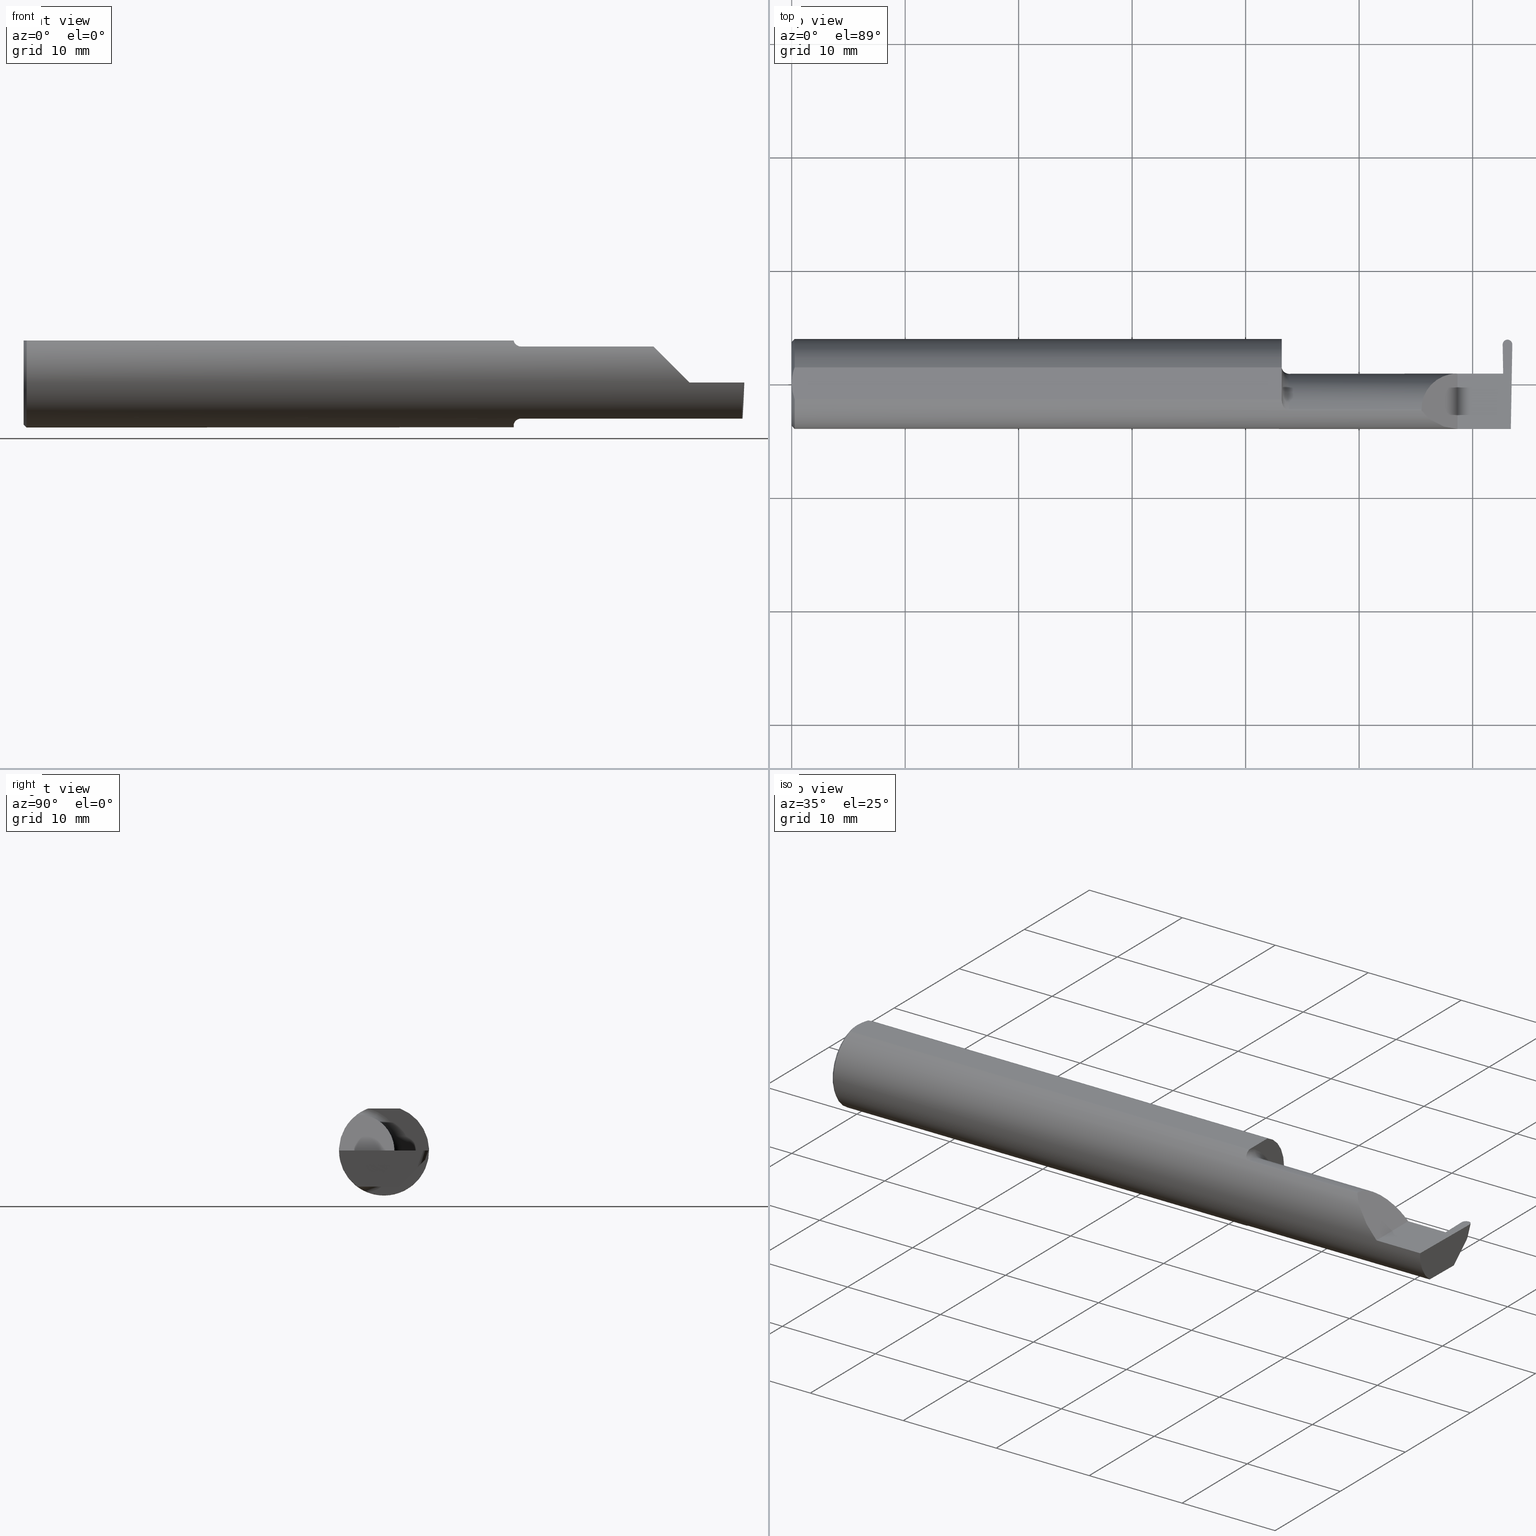
[diagram: canonical four-view strip — front | top / right | iso, engineering-drawing reading convention]
A machine part, canonical four-view strip (front | top / right | iso — engineering-drawing reading convention). The complete STEP part file that produces these views, byte-faithful:
ISO-10303-21;
HEADER;
FILE_DESCRIPTION (( 'STEP AP203' ),
    '1' );
FILE_NAME ('222017-GFR033-12.STEP',
    '2024-06-17T21:41:22',
    ( '' ),
    ( '' ),
    'SwSTEP 2.0',
    'SolidWorks 2022',
    '' );
FILE_SCHEMA (( 'CONFIG_CONTROL_DESIGN' ));
ENDSEC;

DATA;
#1 = CARTESIAN_POINT ( 'NONE',  ( 0.0009113193687667381273, -0.01867274705588958111, 0.1460999999999998411 ) ) ;
#2 = EDGE_CURVE ( 'NONE', #299, #800, #129, .T. ) ;
#3 = DIRECTION ( 'NONE',  ( -0.03867711768362980251, 0.3253245514560481610, 0.9448111011136605120 ) ) ;
#4 = VERTEX_POINT ( 'NONE', #445 ) ;
#5 = DIRECTION ( 'NONE',  ( 0.000000000000000000, 0.000000000000000000, 1.000000000000000000 ) ) ;
#6 = CARTESIAN_POINT ( 'NONE',  ( 2.310000000000000053, -0.1560999999999999888, 2.326828918379970872E-17 ) ) ;
#7 = CARTESIAN_POINT ( 'NONE',  ( 2.464059707644674191, 0.2077620204123533376, 0.03353617642433374263 ) ) ;
#8 =( CONVERSION_BASED_UNIT ( 'INCH', #318 ) LENGTH_UNIT ( ) NAMED_UNIT ( #44 ) );
#9 = AXIS2_PLACEMENT_3D ( 'NONE', #59, #547, #794 ) ;
#10 = DIRECTION ( 'NONE',  ( 0.000000000000000000, 0.000000000000000000, -1.000000000000000000 ) ) ;
#11 = LINE ( 'NONE', #755, #386 ) ;
#12 = CC_DESIGN_PERSON_AND_ORGANIZATION_ASSIGNMENT ( #472, #528, ( #289 ) ) ;
#13 = CARTESIAN_POINT ( 'NONE',  ( 2.494884149684813757, -0.1560999999999999888, 0.000000000000000000 ) ) ;
#14 = ADVANCED_FACE ( 'NONE', ( #134 ), #154, .F. ) ;
#15 = CARTESIAN_POINT ( 'NONE',  ( 2.460866666469919473, 0.03559550628247790810, -0.008719559218017721922 ) ) ;
#16 = CARTESIAN_POINT ( 'NONE',  ( 1.699999999999999956, -0.08909999999999999865, -0.1250000000000000278 ) ) ;
#17 = ORIENTED_EDGE ( 'NONE', *, *, #148, .T. ) ;
#18 = LINE ( 'NONE', #22, #453 ) ;
#19 = ORIENTED_EDGE ( 'NONE', *, *, #426, .F. ) ;
#20 = CIRCLE ( 'NONE', #126, 0.1560999999999999888 ) ;
#21 = ORIENTED_EDGE ( 'NONE', *, *, #50, .F. ) ;
#22 = CARTESIAN_POINT ( 'NONE',  ( 2.472822662481140910, -0.08936878799867206680, -0.1250000000000000278 ) ) ;
#23 = EDGE_CURVE ( 'NONE', #552, #4, #635, .T. ) ;
#24 = CARTESIAN_POINT ( 'NONE',  ( 2.472736521078112926, -0.01986741890188671936, -0.1250000000000000555 ) ) ;
#25 = ORIENTED_EDGE ( 'NONE', *, *, #488, .F. ) ;
#26 = CARTESIAN_POINT ( 'NONE',  ( 1.724999999999999867, -0.08910000000000001252, 0.1250000000000000278 ) ) ;
#27 = DESIGN_CONTEXT ( 'detailed design', #371, 'design' ) ;
#28 = DIRECTION ( 'NONE',  ( -0.03867711768363006619, -0.3253245514560481610, -0.9448111011136605120 ) ) ;
#29 = ORIENTED_EDGE ( 'NONE', *, *, #182, .T. ) ;
#30 = APPROVAL_DATE_TIME ( #89, #723 ) ;
#31 = DIRECTION ( 'NONE',  ( 0.000000000000000000, 0.000000000000000000, -1.000000000000000000 ) ) ;
#32 = LINE ( 'NONE', #281, #768 ) ;
#33 = ORIENTED_EDGE ( 'NONE', *, *, #359, .F. ) ;
#34 = CIRCLE ( 'NONE', #627, 0.02499999999999993894 ) ;
#35 = CARTESIAN_POINT ( 'NONE',  ( 2.468075038322403714, 0.1311060022846998185, -0.04311984170332067851 ) ) ;
#36 = LINE ( 'NONE', #729, #221 ) ;
#37 = ORIENTED_EDGE ( 'NONE', *, *, #311, .F. ) ;
#38 = CARTESIAN_POINT ( 'NONE',  ( 2.259912409421231949, -0.1560999999999999333, 0.05008759057876778498 ) ) ;
#39 = DIRECTION ( 'NONE',  ( 0.000000000000000000, 0.000000000000000000, 1.000000000000000000 ) ) ;
#40 = ORIENTED_EDGE ( 'NONE', *, *, #329, .T. ) ;
#41 = CARTESIAN_POINT ( 'NONE',  ( 1.699999999999999956, -0.05497272050753934658, 0.1460999999999998689 ) ) ;
#42 = EDGE_CURVE ( 'NONE', #507, #628, #354, .T. ) ;
#43 = DIRECTION ( 'NONE',  ( -1.000000000000000000, -0.000000000000000000, -0.000000000000000000 ) ) ;
#44 = DIMENSIONAL_EXPONENTS ( 1.000000000000000000, 0.000000000000000000, 0.000000000000000000, 0.000000000000000000, 0.000000000000000000, 0.000000000000000000, 0.000000000000000000 ) ;
#45 =( BOUNDED_CURVE ( )  B_SPLINE_CURVE ( 3, ( #522, #535, #713, #654 ),
 .UNSPECIFIED., .F., .F. ) 
 B_SPLINE_CURVE_WITH_KNOTS ( ( 4, 4 ),
 ( 0.4273896528388629878, 0.4634648172053268400 ),
 .UNSPECIFIED. ) 
 CURVE ( )  GEOMETRIC_REPRESENTATION_ITEM ( )  RATIONAL_B_SPLINE_CURVE ( ( 1.000000000000000000, 0.9998915514833921492, 0.9998915514833921492, 1.000000000000000000 ) ) 
 REPRESENTATION_ITEM ( '' )  );
#46 = ORIENTED_EDGE ( 'NONE', *, *, #378, .T. ) ;
#47 = VECTOR ( 'NONE', #236, 39.37007874015748854 ) ;
#48 = AXIS2_PLACEMENT_3D ( 'NONE', #604, #49, #251 ) ;
#49 = DIRECTION ( 'NONE',  ( 0.000000000000000000, -0.9455185755993165131, 0.3255681544571574215 ) ) ;
#50 = EDGE_CURVE ( 'NONE', #381, #419, #693, .T. ) ;
#51 = CARTESIAN_POINT ( 'NONE',  ( 1.703804698179399946, -0.07664326672408305896, -0.1360300949145557270 ) ) ;
#52 = B_SPLINE_CURVE_WITH_KNOTS ( 'NONE', 3,
 ( #698, #749, #188, #1, #702, #746 ),
 .UNSPECIFIED., .F., .F.,
 ( 4, 2, 4 ),
 ( 0.001497827971916944247, 0.002206109860466205601, 0.002914391749015466521 ),
 .UNSPECIFIED. ) ;
#53 = ORIENTED_EDGE ( 'NONE', *, *, #62, .F. ) ;
#54 = CARTESIAN_POINT ( 'NONE',  ( 2.215117332916549220, -0.1336908980339253650, 0.09488266708345012568 ) ) ;
#55 = PRODUCT_RELATED_PRODUCT_CATEGORY ( 'detail', '', ( #664 ) ) ;
#56 = DIRECTION ( 'NONE',  ( -1.000000000000000000, -0.000000000000000000, -0.000000000000000000 ) ) ;
#57 = ORIENTED_EDGE ( 'NONE', *, *, #23, .F. ) ;
#58 = EDGE_CURVE ( 'NONE', #686, #552, #266, .T. ) ;
#59 = CARTESIAN_POINT ( 'NONE',  ( 2.310000000000000053, -0.2500000000000000555, 2.326828918379970872E-17 ) ) ;
#60 = LINE ( 'NONE', #685, #47 ) ;
#61 = ORIENTED_EDGE ( 'NONE', *, *, #766, .T. ) ;
#62 = EDGE_CURVE ( 'NONE', #278, #683, #781, .T. ) ;
#63 = CARTESIAN_POINT ( 'NONE',  ( 1.699999999999999956, 0.000000000000000000, 0.000000000000000000 ) ) ;
#64 = ORIENTED_EDGE ( 'NONE', *, *, #549, .T. ) ;
#65 = DIRECTION ( 'NONE',  ( -1.000000000000000000, -0.000000000000000000, -0.000000000000000000 ) ) ;
#66 = ORIENTED_EDGE ( 'NONE', *, *, #355, .F. ) ;
#67 = COORDINATED_UNIVERSAL_TIME_OFFSET ( 8, 0, .BEHIND. ) ;
#68 = PLANE ( 'NONE',  #262 ) ;
#69 = CARTESIAN_POINT ( 'NONE',  ( 1.724999999999999867, -0.08910000000000001252, 0.000000000000000000 ) ) ;
#70 =( BOUNDED_CURVE ( )  B_SPLINE_CURVE ( 3, ( #286, #35, #160, #411 ),
 .UNSPECIFIED., .F., .T. ) 
 B_SPLINE_CURVE_WITH_KNOTS ( ( 4, 4 ),
 ( 4.726121454046342762, 6.236040282224284859 ),
 .UNSPECIFIED. ) 
 CURVE ( )  GEOMETRIC_REPRESENTATION_ITEM ( )  RATIONAL_B_SPLINE_CURVE ( ( 1.000000000000000000, 0.8188662370985364536, 0.8188662370985364536, 1.000000000000000000 ) ) 
 REPRESENTATION_ITEM ( '' )  );
#71 = PERSON_AND_ORGANIZATION_ROLE ( 'design_owner' ) ;
#72 = APPROVAL ( #569, 'UNSPECIFIED' ) ;
#73 = VECTOR ( 'NONE', #688, 39.37007874015748143 ) ;
#74 = PLANE ( 'NONE',  #731 ) ;
#75 = AXIS2_PLACEMENT_3D ( 'NONE', #128, #194, #79 ) ;
#76 = CARTESIAN_POINT ( 'NONE',  ( 2.493134786043259332, -0.1561000000000000165, -0.05008759057876779885 ) ) ;
#77 = EDGE_CURVE ( 'NONE', #515, #599, #774, .T. ) ;
#78 = PLANE ( 'NONE',  #771 ) ;
#79 = DIRECTION ( 'NONE',  ( 1.000000000000000000, 0.000000000000000000, -0.000000000000000000 ) ) ;
#80 = ORIENTED_EDGE ( 'NONE', *, *, #131, .T. ) ;
#81 = CALENDAR_DATE ( 2024, 17, 6 ) ;
#82 = DIRECTION ( 'NONE',  ( 1.000000000000000000, 0.000000000000000000, 0.000000000000000000 ) ) ;
#83 = ORIENTED_EDGE ( 'NONE', *, *, #284, .T. ) ;
#84 = ADVANCED_FACE ( 'NONE', ( #523 ), #478, .T. ) ;
#85 = CARTESIAN_POINT ( 'NONE',  ( 0.000000000000000000, 0.000000000000000000, 0.000000000000000000 ) ) ;
#86 = AXIS2_PLACEMENT_3D ( 'NONE', #69, #447, #321 ) ;
#87 = CARTESIAN_POINT ( 'NONE',  ( 1.712810002172886481, -0.08909999999996051634, -0.1281733201567833713 ) ) ;
#88 = ORIENTED_EDGE ( 'NONE', *, *, #622, .F. ) ;
#89 = DATE_AND_TIME ( #344, #169 ) ;
#90 = CARTESIAN_POINT ( 'NONE',  ( 1.724999999999999867, -0.09360841750841744635, -0.1249186702281520484 ) ) ;
#91 = CARTESIAN_POINT ( 'NONE',  ( 2.498391341677597133, 0.1311060022846997908, -0.04311984170332067851 ) ) ;
#92 = ORIENTED_EDGE ( 'NONE', *, *, #329, .F. ) ;
#93 = APPROVAL_ROLE ( '' ) ;
#94 = DIRECTION ( 'NONE',  ( 0.000000000000000000, 0.000000000000000000, -1.000000000000000000 ) ) ;
#95 = UNCERTAINTY_MEASURE_WITH_UNIT (LENGTH_MEASURE( 1.000000000000000082E-05 ), #8, 'distance_accuracy_value', 'NONE');
#96 = DIRECTION ( 'NONE',  ( 0.000000000000000000, 0.000000000000000000, -1.000000000000000000 ) ) ;
#97 = ORIENTED_EDGE ( 'NONE', *, *, #549, .F. ) ;
#98 = CARTESIAN_POINT ( 'NONE',  ( 1.699999999999999956, 0.05497272050753933964, 0.1460999999999998689 ) ) ;
#99 = DIRECTION ( 'NONE',  ( -0.000000000000000000, 1.000000000000000000, -0.000000000000000000 ) ) ;
#100 = CLOSED_SHELL ( 'NONE', ( #215, #633, #653, #241, #801, #276, #450, #725, #460, #751, #197, #598, #14, #718, #195, #365, #679, #464, #250, #761, #259, #84, #438 ) ) ;
#101 = EDGE_CURVE ( 'NONE', #674, #645, #789, .T. ) ;
#102 = ORIENTED_EDGE ( 'NONE', *, *, #226, .F. ) ;
#103 = VECTOR ( 'NONE', #543, 39.37007874015748143 ) ;
#104 = LOCAL_TIME ( 14, 41, 22.00000000000000000, #465 ) ;
#105 = CARTESIAN_POINT ( 'NONE',  ( 1.712810002172222568, -0.08909999999984938301, 0.1281733201569305869 ) ) ;
#106 = DIRECTION ( 'NONE',  ( 0.03867711768362979557, -0.3253245514560481610, -0.9448111011136605120 ) ) ;
#107 = ORIENTED_EDGE ( 'NONE', *, *, #320, .F. ) ;
#108 = EDGE_CURVE ( 'NONE', #452, #545, #582, .T. ) ;
#109 = CARTESIAN_POINT ( 'NONE',  ( 2.185081329771846992, -0.09360841750841733533, 0.1249186702281521039 ) ) ;
#110 = FACE_OUTER_BOUND ( 'NONE', #497, .T. ) ;
#111 = VERTEX_POINT ( 'NONE', #346 ) ;
#112 = CARTESIAN_POINT ( 'NONE',  ( 0.009999999999999825001, 0.000000000000000000, -0.1560999999999999888 ) ) ;
#113 = DIRECTION ( 'NONE',  ( 0.03547001781079412580, 0.000000000000000000, -0.9993707409347654114 ) ) ;
#114 = ORIENTED_EDGE ( 'NONE', *, *, #426, .T. ) ;
#115 = VECTOR ( 'NONE', #138, 39.37007874015748143 ) ;
#116 = CONICAL_SURFACE ( 'NONE', #300, 0.1461000000000001187, 0.7853981633974499443 ) ;
#117 = DIRECTION ( 'NONE',  ( 1.000000000000000000, 0.000000000000000000, 0.000000000000000000 ) ) ;
#118 = CARTESIAN_POINT ( 'NONE',  ( 1.724999999999999867, -0.08910000000000001252, 0.000000000000000000 ) ) ;
#119 = EDGE_LOOP ( 'NONE', ( #61, #248, #492, #748, #538 ) ) ;
#120 = FACE_OUTER_BOUND ( 'NONE', #200, .T. ) ;
#121 = CARTESIAN_POINT ( 'NONE',  ( 1.699999999999999956, -0.08910000000000001252, 0.000000000000000000 ) ) ;
#122 = ORIENTED_EDGE ( 'NONE', *, *, #182, .F. ) ;
#123 = DIRECTION ( 'NONE',  ( -1.000000000000000000, -0.000000000000000000, -0.000000000000000000 ) ) ;
#124 = ORIENTED_EDGE ( 'NONE', *, *, #638, .F. ) ;
#125 = VECTOR ( 'NONE', #605, 39.37007874015748143 ) ;
#126 = AXIS2_PLACEMENT_3D ( 'NONE', #589, #710, #31 ) ;
#127 = MANIFOLD_SOLID_BREP ( 'Radii', #100 ) ;
#128 = CARTESIAN_POINT ( 'NONE',  ( 2.689688574201023474, -0.08909999999999985987, -0.1250000000000000278 ) ) ;
#129 = LINE ( 'NONE', #7, #560 ) ;
#130 = ADVANCED_BREP_SHAPE_REPRESENTATION ( '222017-GFR033-12', ( #127, #263 ), #551 ) ;
#131 = EDGE_CURVE ( 'NONE', #172, #800, #32, .T. ) ;
#132 = CARTESIAN_POINT ( 'NONE',  ( 2.689688574201023474, -0.08909999999999985987, -0.1250000000000000278 ) ) ;
#133 = DIRECTION ( 'NONE',  ( 1.000000000000000000, 0.000000000000000000, 0.000000000000000000 ) ) ;
#134 = FACE_OUTER_BOUND ( 'NONE', #292, .T. ) ;
#135 = EDGE_CURVE ( 'NONE', #381, #628, #36, .T. ) ;
#136 = CARTESIAN_POINT ( 'NONE',  ( 2.461171160187441309, 0.03589999999999995278, 0.000000000000000000 ) ) ;
#137 = DIRECTION ( 'NONE',  ( -0.03549161113179505334, 0.03487750912278164694, 0.9987611851171729338 ) ) ;
#138 = DIRECTION ( 'NONE',  ( -1.000000000000000000, -0.000000000000000000, -0.000000000000000000 ) ) ;
#139 = LINE ( 'NONE', #132, #348 ) ;
#140 = AXIS2_PLACEMENT_3D ( 'NONE', #118, #123, #608 ) ;
#141 = FACE_OUTER_BOUND ( 'NONE', #790, .T. ) ;
#142 = LOCAL_TIME ( 14, 41, 22.00000000000000000, #157 ) ;
#143 = ORIENTED_EDGE ( 'NONE', *, *, #226, .T. ) ;
#144 = ORIENTED_EDGE ( 'NONE', *, *, #42, .F. ) ;
#145 = PERSON_AND_ORGANIZATION_ROLE ( 'classification_officer' ) ;
#146 = DIRECTION ( 'NONE',  ( 0.000000000000000000, 0.000000000000000000, -1.000000000000000000 ) ) ;
#147 = VERTEX_POINT ( 'NONE', #459 ) ;
#148 = EDGE_CURVE ( 'NONE', #591, #614, #786, .T. ) ;
#149 = DIRECTION ( 'NONE',  ( -0.01745240643727519192, 0.9998476951563914916, -0.000000000000000000 ) ) ;
#150 = LINE ( 'NONE', #233, #610 ) ;
#151 = VERTEX_POINT ( 'NONE', #711 ) ;
#152 = APPROVAL_STATUS ( 'not_yet_approved' ) ;
#153 = CARTESIAN_POINT ( 'NONE',  ( 2.483233189999999535, 0.1525290440048721052, -0.003981545313865254496 ) ) ;
#154 = TOROIDAL_SURFACE ( 'NONE', #86, 0.1499999999999999667, 0.02499999999999994241 ) ;
#155 = DIRECTION ( 'NONE',  ( 1.000000000000000000, 0.000000000000000000, 0.000000000000000000 ) ) ;
#156 = ORIENTED_EDGE ( 'NONE', *, *, #255, .T. ) ;
#157 = COORDINATED_UNIVERSAL_TIME_OFFSET ( 8, 0, .BEHIND. ) ;
#158 = PLANE ( 'NONE',  #782 ) ;
#159 = ORIENTED_EDGE ( 'NONE', *, *, #493, .F. ) ;
#160 = CARTESIAN_POINT ( 'NONE',  ( 2.473923062303208464, 0.1421696444044674990, -0.03205619958355283849 ) ) ;
#161 = CARTESIAN_POINT ( 'NONE',  ( 2.095733190000000246, -0.09360841750841740472, 0.1249186702281520484 ) ) ;
#162 = EDGE_CURVE ( 'NONE', #336, #431, #150, .T. ) ;
#163 = ORIENTED_EDGE ( 'NONE', *, *, #392, .T. ) ;
#164 = DIRECTION ( 'NONE',  ( 0.03867711768363006619, 0.3253245514560481610, 0.9448111011136606230 ) ) ;
#165 = CARTESIAN_POINT ( 'NONE',  ( 2.492543317696792382, 0.1421696444044675545, -0.03205619958355280380 ) ) ;
#166 = TOROIDAL_SURFACE ( 'NONE', #140, 0.1499999999999999667, 0.02499999999999994241 ) ;
#167 = AXIS2_PLACEMENT_3D ( 'NONE', #567, #65, #146 ) ;
#168 = ORIENTED_EDGE ( 'NONE', *, *, #58, .F. ) ;
#169 = LOCAL_TIME ( 14, 41, 22.00000000000000000, #588 ) ;
#170 = DIRECTION ( 'NONE',  ( -1.000000000000000000, -0.000000000000000000, -0.000000000000000000 ) ) ;
#171 = DIRECTION ( 'NONE',  ( 0.000000000000000000, 0.000000000000000000, 1.000000000000000000 ) ) ;
#172 = VERTEX_POINT ( 'NONE', #541 ) ;
#173 = EDGE_CURVE ( 'NONE', #339, #431, #213, .T. ) ;
#174 = CARTESIAN_POINT ( 'NONE',  ( 1.708314215045238615, -0.08466760255782121436, 0.1311795204669789217 ) ) ;
#175 = PLANE ( 'NONE',  #546 ) ;
#176 = ORIENTED_EDGE ( 'NONE', *, *, #479, .F. ) ;
#177 = CARTESIAN_POINT ( 'NONE',  ( 1.710319203512565833, -0.08709887368156790655, 0.1295644080582773472 ) ) ;
#178 = CARTESIAN_POINT ( 'NONE',  ( 1.712810002172886481, -0.08909999999996051634, -0.1281733201567833713 ) ) ;
#179 = VERTEX_POINT ( 'NONE', #593 ) ;
#180 = B_SPLINE_CURVE_WITH_KNOTS ( 'NONE', 3,
 ( #15, #695, #323, #136 ),
 .UNSPECIFIED., .F., .F.,
 ( 4, 4 ),
 ( 0.000000000000000000, 1.000000000000000000 ),
 .UNSPECIFIED. ) ;
#181 = DIRECTION ( 'NONE',  ( -1.000000000000000000, -0.000000000000000000, -0.000000000000000000 ) ) ;
#182 = EDGE_CURVE ( 'NONE', #419, #515, #474, .T. ) ;
#183 = DIRECTION ( 'NONE',  ( 0.03490480639812536257, 0.000000000000000000, -0.9993906415863165194 ) ) ;
#184 = ORIENTED_EDGE ( 'NONE', *, *, #273, .T. ) ;
#185 = FACE_OUTER_BOUND ( 'NONE', #231, .T. ) ;
#186 = LINE ( 'NONE', #247, #205 ) ;
#187 = ORIENTED_EDGE ( 'NONE', *, *, #694, .T. ) ;
#188 = CARTESIAN_POINT ( 'NONE',  ( 0.004356241145161599167, -0.03705973501792377695, 0.1460999999999998689 ) ) ;
#189 = CARTESIAN_POINT ( 'NONE',  ( 2.500000000000000000, -0.2500000000000000555, 0.000000000000000000 ) ) ;
#190 = VERTEX_POINT ( 'NONE', #87 ) ;
#191 = EDGE_CURVE ( 'NONE', #362, #314, #245, .T. ) ;
#192 = VECTOR ( 'NONE', #356, 39.37007874015748143 ) ;
#193 = CARTESIAN_POINT ( 'NONE',  ( 0.000000000000000000, 0.000000000000000000, 0.000000000000000000 ) ) ;
#194 = DIRECTION ( 'NONE',  ( 0.000000000000000000, 0.000000000000000000, 1.000000000000000000 ) ) ;
#195 = ADVANCED_FACE ( 'NONE', ( #526 ), #158, .T. ) ;
#196 = DIRECTION ( 'NONE',  ( -0.03701368837992356081, 0.7066222423871549863, 0.7066222423871629799 ) ) ;
#197 = ADVANCED_FACE ( 'NONE', ( #342 ), #496, .T. ) ;
#198 = CARTESIAN_POINT ( 'NONE',  ( 0.000000000000000000, 0.000000000000000000, 0.000000000000000000 ) ) ;
#199 = PLANE ( 'NONE',  #75 ) ;
#200 = EDGE_LOOP ( 'NONE', ( #92, #470, #159, #306, #244 ) ) ;
#201 = APPLICATION_PROTOCOL_DEFINITION ( 'international standard', 'config_control_design', 1994, #623 ) ;
#202 = LINE ( 'NONE', #327, #520 ) ;
#203 = VERTEX_POINT ( 'NONE', #676 ) ;
#204 = DATE_AND_TIME ( #81, #455 ) ;
#205 = VECTOR ( 'NONE', #483, 39.37007874015748854 ) ;
#206 = AXIS2_PLACEMENT_3D ( 'NONE', #791, #181, #802 ) ;
#207 = CARTESIAN_POINT ( 'NONE',  ( 1.716072683443917946, -0.09172126259464272180, 0.1263511429915042672 ) ) ;
#208 = EDGE_CURVE ( 'NONE', #203, #179, #60, .T. ) ;
#209 = CC_DESIGN_APPROVAL ( #72, ( #224 ) ) ;
#210 = ORIENTED_EDGE ( 'NONE', *, *, #282, .T. ) ;
#211 = B_SPLINE_CURVE_WITH_KNOTS ( 'NONE', 3,
 ( #238, #351, #668, #556, #358, #174, #177, #105 ),
 .UNSPECIFIED., .F., .F.,
 ( 4, 2, 2, 4 ),
 ( 2.042507625476046020E-06, 0.0005263182385139166366, 0.0007884561039581367914, 0.001050593969402356838 ),
 .UNSPECIFIED. ) ;
#212 = CARTESIAN_POINT ( 'NONE',  ( 0.009999999999999825001, 0.05497272050753933964, 0.1460999999999998689 ) ) ;
#213 =( BOUNDED_CURVE ( )  B_SPLINE_CURVE ( 3, ( #663, #601, #222, #660 ),
 .UNSPECIFIED., .F., .T. ) 
 B_SPLINE_CURVE_WITH_KNOTS ( ( 4, 4 ),
 ( 0.000000000000000000, 1.570796326794896336 ),
 .UNSPECIFIED. ) 
 CURVE ( )  GEOMETRIC_REPRESENTATION_ITEM ( )  RATIONAL_B_SPLINE_CURVE ( ( 1.000000000000000000, 0.8047378541243650485, 0.8047378541243650485, 1.000000000000000000 ) ) 
 REPRESENTATION_ITEM ( '' )  );
#214 = DIRECTION ( 'NONE',  ( 0.7071067811865462405, 0.000000000000000000, -0.7071067811865486830 ) ) ;
#215 = ADVANCED_FACE ( 'NONE', ( #803 ), #739, .T. ) ;
#216 = CARTESIAN_POINT ( 'NONE',  ( 2.491612023732480807, -0.09360841750841740472, -0.1249186702281520484 ) ) ;
#217 = CARTESIAN_POINT ( 'NONE',  ( 2.468230857848970228, 0.03589999999999995278, 0.000000000000000000 ) ) ;
#218 = ORIENTED_EDGE ( 'NONE', *, *, #501, .T. ) ;
#219 = SECURITY_CLASSIFICATION_LEVEL ( 'unclassified' ) ;
#220 = CARTESIAN_POINT ( 'NONE',  ( -3.378711048560533498E-16, 0.009396510398413096196, 0.1460999999999998689 ) ) ;
#221 = VECTOR ( 'NONE', #277, 39.37007874015747433 ) ;
#222 = CARTESIAN_POINT ( 'NONE',  ( 2.236776695296636142, 0.03589999999999995972, 0.07322330470336316233 ) ) ;
#223 = AXIS2_PLACEMENT_3D ( 'NONE', #63, #133, #313 ) ;
#224 = PRODUCT_DEFINITION ( 'UNKNOWN', '', #289, #27 ) ;
#225 = ORIENTED_EDGE ( 'NONE', *, *, #603, .T. ) ;
#226 = EDGE_CURVE ( 'NONE', #628, #336, #571, .T. ) ;
#227 = APPROVAL_DATE_TIME ( #204, #72 ) ;
#228 = EDGE_CURVE ( 'NONE', #545, #203, #186, .T. ) ;
#229 = DIRECTION ( 'NONE',  ( 1.000000000000000000, 0.000000000000000000, 0.000000000000000000 ) ) ;
#230 = CARTESIAN_POINT ( 'NONE',  ( 2.499983486910334118, 0.1360408339924935039, 0.000000000000000000 ) ) ;
#231 = EDGE_LOOP ( 'NONE', ( #309, #796, #463, #661 ) ) ;
#232 = CARTESIAN_POINT ( 'NONE',  ( 1.724999999999999867, -0.09360841750841744635, 0.1249186702281520484 ) ) ;
#233 = CARTESIAN_POINT ( 'NONE',  ( 2.310000000000000053, -0.2500000000000000555, 2.326828918379970872E-17 ) ) ;
#234 = ORIENTED_EDGE ( 'NONE', *, *, #2, .F. ) ;
#235 = DIRECTION ( 'NONE',  ( 0.000000000000000000, 0.000000000000000000, 1.000000000000000000 ) ) ;
#236 = DIRECTION ( 'NONE',  ( -0.01745240643727600377, -0.9998476951563912696, 0.000000000000000000 ) ) ;
#237 = ORIENTED_EDGE ( 'NONE', *, *, #532, .T. ) ;
#238 = CARTESIAN_POINT ( 'NONE',  ( 1.699999999999999956, -0.05502817059483729872, 0.1460791239054556601 ) ) ;
#239 = DIRECTION ( 'NONE',  ( -1.000000000000000000, -0.000000000000000000, -0.000000000000000000 ) ) ;
#240 = ORIENTED_EDGE ( 'NONE', *, *, #62, .T. ) ;
#241 = ADVANCED_FACE ( 'NONE', ( #550 ), #166, .F. ) ;
#242 = CYLINDRICAL_SURFACE ( 'NONE', #565, 0.1250000000000000278 ) ;
#243 = DIRECTION ( 'NONE',  ( 0.000000000000000000, -0.9993908270190957621, 0.03489949670250104552 ) ) ;
#244 = ORIENTED_EDGE ( 'NONE', *, *, #583, .F. ) ;
#245 =( BOUNDED_CURVE ( )  B_SPLINE_CURVE ( 3, ( #335, #24, #714, #721 ),
 .UNSPECIFIED., .F., .F. ) 
 B_SPLINE_CURVE_WITH_KNOTS ( ( 4, 4 ),
 ( 3.176499238629679756, 4.677482395344787491 ),
 .UNSPECIFIED. ) 
 CURVE ( )  GEOMETRIC_REPRESENTATION_ITEM ( )  RATIONAL_B_SPLINE_CURVE ( ( 1.000000000000000000, 0.8209024677461173036, 0.8209024677461173036, 1.000000000000000000 ) ) 
 REPRESENTATION_ITEM ( '' )  );
#246 = CARTESIAN_POINT ( 'NONE',  ( 1.699999999999999956, 0.03590000000000000135, 9.797174393178831081E-17 ) ) ;
#247 = CARTESIAN_POINT ( 'NONE',  ( 2.495602440342458372, 0.07786354519681681907, -0.09636229879120425390 ) ) ;
#248 = ORIENTED_EDGE ( 'NONE', *, *, #508, .T. ) ;
#249 = AXIS2_PLACEMENT_3D ( 'NONE', #767, #759, #750 ) ;
#250 = ADVANCED_FACE ( 'NONE', ( #370 ), #308, .F. ) ;
#251 = DIRECTION ( 'NONE',  ( 0.000000000000000000, -0.3255681544571574215, -0.9455185755993165131 ) ) ;
#252 = CARTESIAN_POINT ( 'NONE',  ( 2.466300478715367284, 0.1464913464970357959, 1.915516875273380729E-17 ) ) ;
#253 = VERTEX_POINT ( 'NONE', #375 ) ;
#254 = FACE_OUTER_BOUND ( 'NONE', #343, .T. ) ;
#255 = EDGE_CURVE ( 'NONE', #518, #783, #625, .T. ) ;
#256 = ORIENTED_EDGE ( 'NONE', *, *, #408, .T. ) ;
#257 = CARTESIAN_POINT ( 'NONE',  ( 2.499997446333625195, 0.1368405688172235068, 0.000000000000000000 ) ) ;
#258 = FACE_OUTER_BOUND ( 'NONE', #617, .T. ) ;
#259 = ADVANCED_FACE ( 'NONE', ( #736 ), #743, .F. ) ;
#260 = ORIENTED_EDGE ( 'NONE', *, *, #741, .F. ) ;
#261 = VECTOR ( 'NONE', #214, 39.37007874015748854 ) ;
#262 = AXIS2_PLACEMENT_3D ( 'NONE', #189, #440, #319 ) ;
#263 = AXIS2_PLACEMENT_3D ( 'NONE', #198, #379, #510 ) ;
#264 = CYLINDRICAL_SURFACE ( 'NONE', #402, 0.01680000000000000243 ) ;
#265 = CARTESIAN_POINT ( 'NONE',  ( 1.712810002172222568, -0.08909999999984938301, 0.1281733201569305869 ) ) ;
#266 = LINE ( 'NONE', #777, #125 ) ;
#267 = CARTESIAN_POINT ( 'NONE',  ( 1.712810002172222568, -0.08909999999984938301, 0.1281733201569305869 ) ) ;
#268 = CARTESIAN_POINT ( 'NONE',  ( 2.479355668209936692, 0.1692593020427593520, 0.09620875064361165963 ) ) ;
#269 = VERTEX_POINT ( 'NONE', #428 ) ;
#270 = AXIS2_PLACEMENT_3D ( 'NONE', #615, #561, #39 ) ;
#271 = VECTOR ( 'NONE', #596, 39.37007874015748143 ) ;
#272 = LINE ( 'NONE', #724, #310 ) ;
#273 = EDGE_CURVE ( 'NONE', #599, #172, #519, .T. ) ;
#274 = DIRECTION ( 'NONE',  ( 1.000000000000000000, -0.000000000000000000, -0.000000000000000000 ) ) ;
#275 = CARTESIAN_POINT ( 'NONE',  ( 1.724999999999999867, -0.08910000000000001252, 0.1499999999999999667 ) ) ;
#276 = ADVANCED_FACE ( 'NONE', ( #110 ), #175, .F. ) ;
#277 = DIRECTION ( 'NONE',  ( -0.01745240643727600724, -0.9998476951563914916, 0.000000000000000000 ) ) ;
#278 = VERTEX_POINT ( 'NONE', #544 ) ;
#279 = APPROVAL_ROLE ( '' ) ;
#280 = CARTESIAN_POINT ( 'NONE',  ( 1.699999999999999956, 0.000000000000000000, 0.000000000000000000 ) ) ;
#281 = CARTESIAN_POINT ( 'NONE',  ( 2.466472809451322412, 0.1361256504244731103, 0.0002463248043607938679 ) ) ;
#282 = EDGE_CURVE ( 'NONE', #674, #410, #648, .T. ) ;
#283 = ORIENTED_EDGE ( 'NONE', *, *, #191, .F. ) ;
#284 = EDGE_CURVE ( 'NONE', #591, #518, #754, .T. ) ;
#285 = SHAPE_DEFINITION_REPRESENTATION ( #798, #130 ) ;
#286 = CARTESIAN_POINT ( 'NONE',  ( 2.468866941825129224, 0.1159879026479704311, -0.05823794134005021161 ) ) ;
#287 = VECTOR ( 'NONE', #338, 39.37007874015748143 ) ;
#288 = CARTESIAN_POINT ( 'NONE',  ( 0.000000000000000000, 0.000000000000000000, 0.000000000000000000 ) ) ;
#289 = PRODUCT_DEFINITION_FORMATION_WITH_SPECIFIED_SOURCE ( 'ANY', '', #664, .NOT_KNOWN. ) ;
#290 = ORIENTED_EDGE ( 'NONE', *, *, #135, .F. ) ;
#291 = DIRECTION ( 'NONE',  ( 0.000000000000000000, 0.000000000000000000, -1.000000000000000000 ) ) ;
#292 = EDGE_LOOP ( 'NONE', ( #317, #602, #83 ) ) ;
#293 = FACE_OUTER_BOUND ( 'NONE', #555, .T. ) ;
#294 = ORIENTED_EDGE ( 'NONE', *, *, #23, .T. ) ;
#295 = PLANE ( 'NONE',  #9 ) ;
#296 = DIRECTION ( 'NONE',  ( -0.01745240643727518845, 0.9998476951563912696, 0.000000000000000000 ) ) ;
#297 = AXIS2_PLACEMENT_3D ( 'NONE', #302, #43, #792 ) ;
#298 = AXIS2_PLACEMENT_3D ( 'NONE', #611, #170, #738 ) ;
#299 = VERTEX_POINT ( 'NONE', #421 ) ;
#300 = AXIS2_PLACEMENT_3D ( 'NONE', #193, #579, #10 ) ;
#301 = CARTESIAN_POINT ( 'NONE',  ( 2.468230857848970228, 0.03589999999999995278, 0.000000000000000000 ) ) ;
#302 = CARTESIAN_POINT ( 'NONE',  ( 0.000000000000000000, 0.000000000000000000, 0.000000000000000000 ) ) ;
#303 = ORIENTED_EDGE ( 'NONE', *, *, #255, .F. ) ;
#304 = LINE ( 'NONE', #675, #192 ) ;
#305 = DIRECTION ( 'NONE',  ( 0.9992386149554827179, 0.01744177490282184176, 0.03489949670250104552 ) ) ;
#306 = ORIENTED_EDGE ( 'NONE', *, *, #488, .T. ) ;
#307 = CARTESIAN_POINT ( 'NONE',  ( 1.699999999999999956, -0.08910000000000001252, 0.000000000000000000 ) ) ;
#308 = PLANE ( 'NONE',  #533 ) ;
#309 = ORIENTED_EDGE ( 'NONE', *, *, #282, .F. ) ;
#310 = VECTOR ( 'NONE', #776, 39.37007874015748143 ) ;
#311 = EDGE_CURVE ( 'NONE', #151, #299, #366, .T. ) ;
#312 = DIRECTION ( 'NONE',  ( 1.000000000000000000, 0.000000000000000000, -0.000000000000000000 ) ) ;
#313 = DIRECTION ( 'NONE',  ( 0.000000000000000000, 0.000000000000000000, -1.000000000000000000 ) ) ;
#314 = VERTEX_POINT ( 'NONE', #795 ) ;
#315 = PERSON_AND_ORGANIZATION ( #414, #324 ) ;
#316 = LINE ( 'NONE', #514, #691 ) ;
#317 = ORIENTED_EDGE ( 'NONE', *, *, #532, .F. ) ;
#318 = LENGTH_MEASURE_WITH_UNIT ( LENGTH_MEASURE( 0.02539999999999999897 ), #641 );
#319 = DIRECTION ( 'NONE',  ( -1.000000000000000000, 0.000000000000000000, 1.224646799147353947E-16 ) ) ;
#320 = EDGE_CURVE ( 'NONE', #190, #687, #412, .T. ) ;
#321 = DIRECTION ( 'NONE',  ( 0.000000000000000000, 0.000000000000000000, 1.000000000000000000 ) ) ;
#322 = VECTOR ( 'NONE', #630, 39.37007874015748143 ) ;
#323 = CARTESIAN_POINT ( 'NONE',  ( 2.461069662281600845, 0.03579850209415927353, -0.002906519739339236304 ) ) ;
#324 = ORGANIZATION ( 'UNSPECIFIED', 'UNSPECIFIED', '' ) ;
#325 = DIRECTION ( 'NONE',  ( 0.000000000000000000, 0.000000000000000000, 1.000000000000000000 ) ) ;
#326 = ORIENTED_EDGE ( 'NONE', *, *, #573, .F. ) ;
#327 = CARTESIAN_POINT ( 'NONE',  ( 2.468230857848970228, 0.03589999999999995278, 0.000000000000000000 ) ) ;
#328 = EDGE_LOOP ( 'NONE', ( #764, #585, #779 ) ) ;
#329 = EDGE_CURVE ( 'NONE', #362, #783, #389, .T. ) ;
#330 = PERSON_AND_ORGANIZATION ( #414, #324 ) ;
#331 = CARTESIAN_POINT ( 'NONE',  ( 2.466468933666375207, 0.1368405688172235068, 0.000000000000000000 ) ) ;
#332 = EDGE_LOOP ( 'NONE', ( #163, #210 ) ) ;
#333 = PERSON_AND_ORGANIZATION ( #414, #324 ) ;
#334 = CARTESIAN_POINT ( 'NONE',  ( -3.937007874019685528E-05, 0.04922584398802136441, -0.1250000000000000278 ) ) ;
#335 = CARTESIAN_POINT ( 'NONE',  ( 2.472822329339857461, -0.08910000000000001252, -0.1250000000000000278 ) ) ;
#336 = VERTEX_POINT ( 'NONE', #6 ) ;
#337 = LINE ( 'NONE', #780, #271 ) ;
#338 = DIRECTION ( 'NONE',  ( 1.000000000000000000, 0.000000000000000000, 0.000000000000000000 ) ) ;
#339 = VERTEX_POINT ( 'NONE', #642 ) ;
#340 = APPROVAL_DATE_TIME ( #396, #388 ) ;
#341 = DIRECTION ( 'NONE',  ( 0.000000000000000000, 0.000000000000000000, 1.000000000000000000 ) ) ;
#342 = FACE_OUTER_BOUND ( 'NONE', #752, .T. ) ;
#343 = EDGE_LOOP ( 'NONE', ( #25, #665, #143, #542, #709, #33, #124, #97, #405, #218, #737, #57, #66, #107, #176 ) ) ;
#344 = CALENDAR_DATE ( 2024, 17, 6 ) ;
#345 = DIRECTION ( 'NONE',  ( -1.000000000000000000, -0.000000000000000000, -0.000000000000000000 ) ) ;
#346 = CARTESIAN_POINT ( 'NONE',  ( 1.699999999999999956, -0.05502817059483729872, 0.1460791239054556601 ) ) ;
#347 = VECTOR ( 'NONE', #149, 39.37007874015747433 ) ;
#348 = VECTOR ( 'NONE', #505, 39.37007874015748143 ) ;
#349 = EDGE_LOOP ( 'NONE', ( #606, #484, #568, #122, #21 ) ) ;
#350 = EDGE_CURVE ( 'NONE', #151, #314, #11, .T. ) ;
#351 = CARTESIAN_POINT ( 'NONE',  ( 1.699999999999999734, -0.06156212810510099803, 0.1436177747480845701 ) ) ;
#352 = DIRECTION ( 'NONE',  ( 0.000000000000000000, 0.9455185755993165131, -0.3255681544571575881 ) ) ;
#353 = ORIENTED_EDGE ( 'NONE', *, *, #513, .T. ) ;
#354 =( BOUNDED_CURVE ( )  B_SPLINE_CURVE ( 3, ( #384, #639, #76, #13 ),
 .UNSPECIFIED., .F., .F. ) 
 B_SPLINE_CURVE_WITH_KNOTS ( ( 4, 4 ),
 ( 0.1796232990704065835, 1.107331509589571494 ),
 .UNSPECIFIED. ) 
 CURVE ( )  GEOMETRIC_REPRESENTATION_ITEM ( )  RATIONAL_B_SPLINE_CURVE ( ( 1.000000000000000000, 0.9295565493311497285, 0.9295565493311497285, 1.000000000000000000 ) ) 
 REPRESENTATION_ITEM ( '' )  );
#355 = EDGE_CURVE ( 'NONE', #687, #552, #770, .T. ) ;
#356 = DIRECTION ( 'NONE',  ( -1.000000000000000000, -0.000000000000000000, -0.000000000000000000 ) ) ;
#357 = ORIENTED_EDGE ( 'NONE', *, *, #659, .T. ) ;
#358 = CARTESIAN_POINT ( 'NONE',  ( 1.705056522840237898, -0.07943464720522702693, 0.1344128205797975040 ) ) ;
#359 = EDGE_CURVE ( 'NONE', #760, #591, #559, .T. ) ;
#360 = CARTESIAN_POINT ( 'NONE',  ( 1.708312875394041752, -0.08466547365232439393, -0.1311808389156051691 ) ) ;
#361 = CIRCLE ( 'NONE', #167, 0.1461000000000001187 ) ;
#362 = VERTEX_POINT ( 'NONE', #380 ) ;
#363 = CC_DESIGN_PERSON_AND_ORGANIZATION_ASSIGNMENT ( #315, #71, ( #664 ) ) ;
#364 = CARTESIAN_POINT ( 'NONE',  ( 2.483233190000000423, 0.1494170131762762033, -0.01301953909793605348 ) ) ;
#365 = ADVANCED_FACE ( 'NONE', ( #700 ), #199, .F. ) ;
#366 = LINE ( 'NONE', #673, #640 ) ;
#367 = ORIENTED_EDGE ( 'NONE', *, *, #162, .T. ) ;
#368 = EDGE_LOOP ( 'NONE', ( #395, #187, #504, #144, #391, #524 ) ) ;
#369 = CARTESIAN_POINT ( 'NONE',  ( 1.699999999999999956, -0.08910000000000001252, 0.000000000000000000 ) ) ;
#370 = FACE_OUTER_BOUND ( 'NONE', #558, .T. ) ;
#371 = APPLICATION_CONTEXT ( 'configuration controlled 3d designs of mechanical parts and assemblies' ) ;
#372 = EDGE_LOOP ( 'NONE', ( #439, #168, #64, #415 ) ) ;
#373 = B_SPLINE_CURVE_WITH_KNOTS ( 'NONE', 3,
 ( #529, #220, #468, #788, #773, #212 ),
 .UNSPECIFIED., .F., .F.,
 ( 4, 2, 4 ),
 ( 0.002914391749015466521, 0.003623333355014861108, 0.004332274961014255694 ),
 .UNSPECIFIED. ) ;
#374 = CARTESIAN_POINT ( 'NONE',  ( 2.814752029381861309, 0.1560999999999999888, 0.1460999999999998689 ) ) ;
#375 = CARTESIAN_POINT ( 'NONE',  ( 2.460866666469919473, 0.03559550628247790810, -0.008719559218017721922 ) ) ;
#376 = ORIENTED_EDGE ( 'NONE', *, *, #603, .F. ) ;
#377 = AXIS2_PLACEMENT_3D ( 'NONE', #799, #557, #113 ) ;
#378 = EDGE_CURVE ( 'NONE', #314, #683, #202, .T. ) ;
#379 = DIRECTION ( 'NONE',  ( 0.000000000000000000, 0.000000000000000000, 1.000000000000000000 ) ) ;
#380 = CARTESIAN_POINT ( 'NONE',  ( 2.472822329339857461, -0.08910000000000001252, -0.1250000000000000278 ) ) ;
#381 = VERTEX_POINT ( 'NONE', #708 ) ;
#382 = CYLINDRICAL_SURFACE ( 'NONE', #442, 0.1560999999999999888 ) ;
#383 = CARTESIAN_POINT ( 'NONE',  ( 2.184999999999998721, -0.08910000000000001252, 0.1250000000000000278 ) ) ;
#384 = CARTESIAN_POINT ( 'NONE',  ( 2.491612023732480807, -0.09360841750841740472, -0.1249186702281520484 ) ) ;
#385 = AXIS2_PLACEMENT_3D ( 'NONE', #726, #590, #352 ) ;
#386 = VECTOR ( 'NONE', #137, 39.37007874015748143 ) ;
#387 = CARTESIAN_POINT ( 'NONE',  ( 2.468866941825129224, 0.1159879026479704311, -0.05823794134005021161 ) ) ;
#388 = APPROVAL ( #152, 'UNSPECIFIED' ) ;
#389 = LINE ( 'NONE', #16, #322 ) ;
#390 = EDGE_CURVE ( 'NONE', #645, #4, #680, .T. ) ;
#391 = ORIENTED_EDGE ( 'NONE', *, *, #493, .T. ) ;
#392 = EDGE_CURVE ( 'NONE', #410, #674, #361, .T. ) ;
#393 = CALENDAR_DATE ( 2024, 17, 6 ) ;
#394 = LINE ( 'NONE', #331, #347 ) ;
#395 = ORIENTED_EDGE ( 'NONE', *, *, #228, .F. ) ;
#396 = DATE_AND_TIME ( #719, #104 ) ;
#397 = LINE ( 'NONE', #334, #103 ) ;
#398 = CARTESIAN_POINT ( 'NONE',  ( 2.483396179931517178, 0.1539000000000000090, 0.000000000000000000 ) ) ;
#399 = EDGE_LOOP ( 'NONE', ( #283, #40, #303, #706, #787, #357, #260, #730 ) ) ;
#400 = EDGE_CURVE ( 'NONE', #599, #419, #316, .T. ) ;
#401 = PERSON_AND_ORGANIZATION ( #414, #324 ) ;
#402 = AXIS2_PLACEMENT_3D ( 'NONE', #268, #3, #444 ) ;
#403 = CARTESIAN_POINT ( 'NONE',  ( 2.497599438174871622, 0.1159879026479704034, -0.05823794134005024631 ) ) ;
#404 = CARTESIAN_POINT ( 'NONE',  ( 0.000000000000000000, 0.000000000000000000, -0.1461000000000001187 ) ) ;
#405 = ORIENTED_EDGE ( 'NONE', *, *, #539, .F. ) ;
#406 = DATE_AND_TIME ( #393, #142 ) ;
#407 = CARTESIAN_POINT ( 'NONE',  ( 1.724999999999999867, -0.08910000000000001252, 0.000000000000000000 ) ) ;
#408 = EDGE_CURVE ( 'NONE', #190, #783, #34, .T. ) ;
#409 = CARTESIAN_POINT ( 'NONE',  ( 2.493284862724282736, 0.1538999999999999257, -1.238434607557906304E-18 ) ) ;
#410 = VERTEX_POINT ( 'NONE', #626 ) ;
#411 = CARTESIAN_POINT ( 'NONE',  ( 2.483233190000000423, 0.1431668316216276604, -0.03105901236639268745 ) ) ;
#412 = B_SPLINE_CURVE_WITH_KNOTS ( 'NONE', 3,
 ( #178, #486, #360, #424, #51, #612, #681, #456 ),
 .UNSPECIFIED., .F., .F.,
 ( 4, 2, 2, 4 ),
 ( 0.0003463854958010611205, 0.0006107451645895071654, 0.0008751048333779532645, 0.001403824170954850667 ),
 .UNSPECIFIED. ) ;
#413 = CARTESIAN_POINT ( 'NONE',  ( 2.479355668209936692, 0.1851440141128278816, 0.09073920564873141914 ) ) ;
#414 = PERSON ( 'UNSPECIFIED', 'UNSPECIFIED', 'UNSPECIFIED', ('UNSPECIFIED'), ('UNSPECIFIED'), ('UNSPECIFIED') ) ;
#415 = ORIENTED_EDGE ( 'NONE', *, *, #622, .T. ) ;
#416 = CARTESIAN_POINT ( 'NONE',  ( 2.185081329771846992, -0.09360841750841733533, 0.1249186702281521039 ) ) ;
#417 = CARTESIAN_POINT ( 'NONE',  ( 2.500165901284633563, 0.1464913464970357959, -2.081118792332164104E-18 ) ) ;
#418 = AXIS2_PLACEMENT_3D ( 'NONE', #374, #5, #312 ) ;
#419 = VERTEX_POINT ( 'NONE', #570 ) ;
#420 = FACE_OUTER_BOUND ( 'NONE', #435, .T. ) ;
#421 = CARTESIAN_POINT ( 'NONE',  ( 2.472364015489967759, 0.04922584398802139216, -0.1250000000000000278 ) ) ;
#422 = ORIENTED_EDGE ( 'NONE', *, *, #573, .T. ) ;
#423 = FACE_OUTER_BOUND ( 'NONE', #701, .T. ) ;
#424 = CARTESIAN_POINT ( 'NONE',  ( 1.705057722617701055, -0.07943655142502265010, -0.1344116409581927740 ) ) ;
#425 = ORIENTED_EDGE ( 'NONE', *, *, #390, .F. ) ;
#426 = EDGE_CURVE ( 'NONE', #614, #339, #775, .T. ) ;
#427 = CARTESIAN_POINT ( 'NONE',  ( 2.483233190000000423, 0.1462951423427373832, -0.02204863939784805840 ) ) ;
#428 = CARTESIAN_POINT ( 'NONE',  ( 0.009999999999999825001, -0.05497272050753933964, 0.1460999999999998689 ) ) ;
#429 = AXIS2_PLACEMENT_3D ( 'NONE', #121, #56, #433 ) ;
#430 = AXIS2_PLACEMENT_3D ( 'NONE', #490, #239, #171 ) ;
#431 = VERTEX_POINT ( 'NONE', #637 ) ;
#432 = CARTESIAN_POINT ( 'NONE',  ( 2.483233189999999535, 0.1525290440048721052, -0.003981545313865254496 ) ) ;
#433 = DIRECTION ( 'NONE',  ( 0.000000000000000000, 0.000000000000000000, 1.000000000000000000 ) ) ;
#434 = ORIENTED_EDGE ( 'NONE', *, *, #108, .T. ) ;
#435 = EDGE_LOOP ( 'NONE', ( #29, #697, #656 ) ) ;
#436 =( BOUNDED_CURVE ( )  B_SPLINE_CURVE ( 3, ( #485, #38, #54, #109 ),
 .UNSPECIFIED., .F., .F. ) 
 B_SPLINE_CURVE_WITH_KNOTS ( ( 4, 4 ),
 ( 4.712388980384689674, 5.640097190903854418 ),
 .UNSPECIFIED. ) 
 CURVE ( )  GEOMETRIC_REPRESENTATION_ITEM ( )  RATIONAL_B_SPLINE_CURVE ( ( 1.000000000000000000, 0.9295565493311498395, 0.9295565493311498395, 1.000000000000000000 ) ) 
 REPRESENTATION_ITEM ( '' )  );
#437 = DIRECTION ( 'NONE',  ( 0.000000000000000000, 0.000000000000000000, -1.000000000000000000 ) ) ;
#438 = ADVANCED_FACE ( 'NONE', ( #258 ), #264, .T. ) ;
#439 = ORIENTED_EDGE ( 'NONE', *, *, #355, .T. ) ;
#440 = DIRECTION ( 'NONE',  ( -1.224646799147353947E-16, 0.000000000000000000, -1.000000000000000000 ) ) ;
#441 = ORIENTED_EDGE ( 'NONE', *, *, #392, .F. ) ;
#442 = AXIS2_PLACEMENT_3D ( 'NONE', #703, #517, #502 ) ;
#443 =( NAMED_UNIT ( * ) PLANE_ANGLE_UNIT ( ) SI_UNIT ( $, .RADIAN. ) );
#444 = DIRECTION ( 'NONE',  ( 0.000000000000000000, -0.9455185755993165131, 0.3255681544571575881 ) ) ;
#445 = CARTESIAN_POINT ( 'NONE',  ( 0.009999999999999825001, 0.05497272050753933964, 0.1460999999999998689 ) ) ;
#446 = CARTESIAN_POINT ( 'NONE',  ( 2.483233190000000423, 0.1431668316216276604, -0.03105901236639268745 ) ) ;
#447 = DIRECTION ( 'NONE',  ( -1.000000000000000000, -0.000000000000000000, -0.000000000000000000 ) ) ;
#448 = CC_DESIGN_PERSON_AND_ORGANIZATION_ASSIGNMENT ( #401, #521, ( #224 ) ) ;
#449 = MECHANICAL_CONTEXT ( 'NONE', #623, 'mechanical' ) ;
#450 = ADVANCED_FACE ( 'NONE', ( #254 ), #382, .T. ) ;
#451 = CARTESIAN_POINT ( 'NONE',  ( 2.185081329771846992, -0.09360841750841733533, 0.1249186702281521039 ) ) ;
#452 = VERTEX_POINT ( 'NONE', #446 ) ;
#453 = VECTOR ( 'NONE', #662, 39.37007874015748854 ) ;
#454 = PERSON_AND_ORGANIZATION ( #414, #324 ) ;
#455 = LOCAL_TIME ( 14, 41, 22.00000000000000000, #67 ) ;
#456 = CARTESIAN_POINT ( 'NONE',  ( 1.699999999999999956, -0.05502817059483729872, -0.1460791239054556601 ) ) ;
#457 = ORIENTED_EDGE ( 'NONE', *, *, #2, .T. ) ;
#458 = CARTESIAN_POINT ( 'NONE',  ( 1.716077244708472893, -0.09172492714866087304, -0.1263485955677198513 ) ) ;
#459 = CARTESIAN_POINT ( 'NONE',  ( 1.724999999999999867, -0.09360841750841744635, -0.1249186702281520484 ) ) ;
#460 = ADVANCED_FACE ( 'NONE', ( #141 ), #68, .F. ) ;
#461 = CARTESIAN_POINT ( 'NONE',  ( -3.937007874019685528E-05, 0.1432258439880203515, -0.03099999999999999978 ) ) ;
#462 = CC_DESIGN_DATE_AND_TIME_ASSIGNMENT ( #406, #707, ( #469 ) ) ;
#463 = ORIENTED_EDGE ( 'NONE', *, *, #501, .F. ) ;
#464 = ADVANCED_FACE ( 'NONE', ( #690 ), #74, .F. ) ;
#465 = COORDINATED_UNIVERSAL_TIME_OFFSET ( 8, 0, .BEHIND. ) ;
#466 = AXIS2_PLACEMENT_3D ( 'NONE', #288, #597, #437 ) ;
#467 = AXIS2_PLACEMENT_3D ( 'NONE', #307, #684, #235 ) ;
#468 = CARTESIAN_POINT ( 'NONE',  ( 0.0009290501461037190250, 0.01879395969143605669, 0.1460999999999998689 ) ) ;
#469 = SECURITY_CLASSIFICATION ( '', '', #219 ) ;
#470 = ORIENTED_EDGE ( 'NONE', *, *, #766, .F. ) ;
#471 =( BOUNDED_CURVE ( )  B_SPLINE_CURVE ( 3, ( #432, #364, #427, #494 ),
 .UNSPECIFIED., .F., .F. ) 
 B_SPLINE_CURVE_WITH_KNOTS ( ( 4, 4 ),
 ( 1.570796326794900999, 1.636803205333741573 ),
 .UNSPECIFIED. ) 
 CURVE ( )  GEOMETRIC_REPRESENTATION_ITEM ( )  RATIONAL_B_SPLINE_CURVE ( ( 1.000000000000000000, 0.9996369572869184816, 0.9996369572869184816, 1.000000000000000000 ) ) 
 REPRESENTATION_ITEM ( '' )  );
#472 = PERSON_AND_ORGANIZATION ( #414, #324 ) ;
#473 = LINE ( 'NONE', #646, #562 ) ;
#474 = LINE ( 'NONE', #647, #715 ) ;
#475 = ORIENTED_EDGE ( 'NONE', *, *, #58, .T. ) ;
#476 = CC_DESIGN_PERSON_AND_ORGANIZATION_ASSIGNMENT ( #454, #145, ( #469 ) ) ;
#477 = PLANE ( 'NONE',  #705 ) ;
#478 = CYLINDRICAL_SURFACE ( 'NONE', #385, 0.01680000000000000243 ) ;
#479 = EDGE_CURVE ( 'NONE', #147, #190, #491, .T. ) ;
#480 = EDGE_LOOP ( 'NONE', ( #631, #734, #88, #578, #237, #156 ) ) ;
#481 = LINE ( 'NONE', #246, #666 ) ;
#482 = CIRCLE ( 'NONE', #534, 0.1560999999999999888 ) ;
#483 = DIRECTION ( 'NONE',  ( -0.03701368837992413674, -0.7066222423871549863, -0.7066222423871629799 ) ) ;
#484 = ORIENTED_EDGE ( 'NONE', *, *, #108, .F. ) ;
#485 = CARTESIAN_POINT ( 'NONE',  ( 2.310000000000000053, -0.1560999999999999888, 2.326828918379970872E-17 ) ) ;
#486 = CARTESIAN_POINT ( 'NONE',  ( 1.710315048287043505, -0.08709553534231927185, -0.1295667287130568834 ) ) ;
#487 = ORIENTED_EDGE ( 'NONE', *, *, #479, .T. ) ;
#488 = EDGE_CURVE ( 'NONE', #507, #147, #337, .T. ) ;
#489 = CYLINDRICAL_SURFACE ( 'NONE', #467, 0.1250000000000000278 ) ;
#490 = CARTESIAN_POINT ( 'NONE',  ( 1.724999999999999867, -0.08910000000000001252, 0.000000000000000000 ) ) ;
#491 = B_SPLINE_CURVE_WITH_KNOTS ( 'NONE', 3,
 ( #90, #525, #458, #592 ),
 .UNSPECIFIED., .F., .F.,
 ( 4, 4 ),
 ( 1.958690481381664333E-07, 0.0003463854958010611205 ),
 .UNSPECIFIED. ) ;
#492 = ORIENTED_EDGE ( 'NONE', *, *, #311, .T. ) ;
#493 = EDGE_CURVE ( 'NONE', #507, #179, #45, .T. ) ;
#494 = CARTESIAN_POINT ( 'NONE',  ( 2.483233190000000423, 0.1431668316216276604, -0.03105901236639268745 ) ) ;
#495 = CARTESIAN_POINT ( 'NONE',  ( 2.466468933666375207, 0.1368405688172235068, 0.000000000000000000 ) ) ;
#496 = CONICAL_SURFACE ( 'NONE', #466, 0.1461000000000001187, 0.7853981633974499443 ) ;
#497 = EDGE_LOOP ( 'NONE', ( #609, #353, #564, #240 ) ) ;
#498 = CARTESIAN_POINT ( 'NONE',  ( 2.499993570548677990, 0.1361256504244730825, 0.0002463248043608053605 ) ) ;
#499 = CARTESIAN_POINT ( 'NONE',  ( 2.466482893089666284, 0.1360408339924935039, 0.000000000000000000 ) ) ;
#500 = ORIENTED_EDGE ( 'NONE', *, *, #583, .T. ) ;
#501 = EDGE_CURVE ( 'NONE', #269, #645, #20, .T. ) ;
#502 = DIRECTION ( 'NONE',  ( 0.000000000000000000, 0.000000000000000000, 1.000000000000000000 ) ) ;
#503 = EDGE_CURVE ( 'NONE', #800, #452, #70, .T. ) ;
#504 = ORIENTED_EDGE ( 'NONE', *, *, #135, .T. ) ;
#505 = DIRECTION ( 'NONE',  ( -1.000000000000000000, -0.000000000000000000, -0.000000000000000000 ) ) ;
#506 = CARTESIAN_POINT ( 'NONE',  ( 2.184999999999999165, -0.09060321336276835891, 0.1250000000000000555 ) ) ;
#507 = VERTEX_POINT ( 'NONE', #216 ) ;
#508 = EDGE_CURVE ( 'NONE', #362, #151, #18, .T. ) ;
#509 = VECTOR ( 'NONE', #164, 39.37007874015748143 ) ;
#510 = DIRECTION ( 'NONE',  ( 1.000000000000000000, 0.000000000000000000, 0.000000000000000000 ) ) ;
#511 = DIRECTION ( 'NONE',  ( -0.03549161113179505334, 0.03487750912278164694, 0.9987611851171729338 ) ) ;
#512 = ORIENTED_EDGE ( 'NONE', *, *, #613, .F. ) ;
#513 = EDGE_CURVE ( 'NONE', #314, #253, #473, .T. ) ;
#514 = CARTESIAN_POINT ( 'NONE',  ( -3.937007874019685528E-05, 0.1539000000000000090, 0.000000000000000000 ) ) ;
#515 = VERTEX_POINT ( 'NONE', #153 ) ;
#516 = DATE_AND_TIME ( #657, #600 ) ;
#517 = DIRECTION ( 'NONE',  ( -1.000000000000000000, -0.000000000000000000, -0.000000000000000000 ) ) ;
#518 = VERTEX_POINT ( 'NONE', #26 ) ;
#519 =( BOUNDED_CURVE ( )  B_SPLINE_CURVE ( 3, ( #620, #733, #252, #499 ),
 .UNSPECIFIED., .F., .F. ) 
 B_SPLINE_CURVE_WITH_KNOTS ( ( 4, 4 ),
 ( 6.171327673818501225, 7.747253380535273237 ),
 .UNSPECIFIED. ) 
 CURVE ( )  GEOMETRIC_REPRESENTATION_ITEM ( )  RATIONAL_B_SPLINE_CURVE ( ( 1.000000000000000000, 0.8035272986452591804, 0.8035272986452591804, 1.000000000000000000 ) ) 
 REPRESENTATION_ITEM ( '' )  );
#520 = VECTOR ( 'NONE', #511, 39.37007874015748143 ) ;
#521 = PERSON_AND_ORGANIZATION_ROLE ( 'creator' ) ;
#522 = CARTESIAN_POINT ( 'NONE',  ( 2.491612023732480807, -0.09360841750841740472, -0.1249186702281520484 ) ) ;
#523 = FACE_OUTER_BOUND ( 'NONE', #349, .T. ) ;
#524 = ORIENTED_EDGE ( 'NONE', *, *, #208, .F. ) ;
#525 = CARTESIAN_POINT ( 'NONE',  ( 1.720361275910303522, -0.09360841750841747411, -0.1249186702281520345 ) ) ;
#526 = FACE_OUTER_BOUND ( 'NONE', #372, .T. ) ;
#527 = ORIENTED_EDGE ( 'NONE', *, *, #284, .F. ) ;
#528 = PERSON_AND_ORGANIZATION_ROLE ( 'creator' ) ;
#529 = CARTESIAN_POINT ( 'NONE',  ( 0.000000000000000000, 0.000000000000000000, 0.1460999999999998689 ) ) ;
#530 = CARTESIAN_POINT ( 'NONE',  ( 2.497599438174871622, 0.1159879026479704034, -0.05823794134005024631 ) ) ;
#531 = ORIENTED_EDGE ( 'NONE', *, *, #101, .F. ) ;
#532 = EDGE_CURVE ( 'NONE', #760, #518, #784, .T. ) ;
#533 = AXIS2_PLACEMENT_3D ( 'NONE', #495, #305, #183 ) ;
#534 = AXIS2_PLACEMENT_3D ( 'NONE', #280, #229, #291 ) ;
#535 = CARTESIAN_POINT ( 'NONE',  ( 2.491636351762904766, -0.09210618219364764825, -0.1249728871357008164 ) ) ;
#536 = CARTESIAN_POINT ( 'NONE',  ( 2.483233190000000423, 0.1431668316216276604, -0.03105901236639268745 ) ) ;
#537 = CC_DESIGN_DATE_AND_TIME_ASSIGNMENT ( #516, #712, ( #224 ) ) ;
#538 = ORIENTED_EDGE ( 'NONE', *, *, #208, .T. ) ;
#539 = EDGE_CURVE ( 'NONE', #269, #686, #272, .T. ) ;
#540 = DIRECTION ( 'NONE',  ( 0.000000000000000000, 0.000000000000000000, -1.000000000000000000 ) ) ;
#541 = CARTESIAN_POINT ( 'NONE',  ( 2.466482893089666284, 0.1360408339924935039, 0.000000000000000000 ) ) ;
#542 = ORIENTED_EDGE ( 'NONE', *, *, #699, .T. ) ;
#543 = DIRECTION ( 'NONE',  ( 1.000000000000000000, -0.000000000000000000, -0.000000000000000000 ) ) ;
#544 = CARTESIAN_POINT ( 'NONE',  ( 2.461171160187441309, 0.03589999999999995278, 0.000000000000000000 ) ) ;
#545 = VERTEX_POINT ( 'NONE', #403 ) ;
#546 = AXIS2_PLACEMENT_3D ( 'NONE', #806, #243, #747 ) ;
#547 = DIRECTION ( 'NONE',  ( -0.7071067811865436870, 0.000000000000000000, -0.7071067811865513475 ) ) ;
#548 = AXIS2_PLACEMENT_3D ( 'NONE', #275, #720, #540 ) ;
#549 = EDGE_CURVE ( 'NONE', #686, #111, #482, .T. ) ;
#550 = FACE_OUTER_BOUND ( 'NONE', #480, .T. ) ;
#551 =( GEOMETRIC_REPRESENTATION_CONTEXT ( 3 ) GLOBAL_UNCERTAINTY_ASSIGNED_CONTEXT ( ( #95 ) ) GLOBAL_UNIT_ASSIGNED_CONTEXT ( ( #8, #443, #762 ) ) REPRESENTATION_CONTEXT ( 'NONE', 'WORKASPACE' ) );
#552 = VERTEX_POINT ( 'NONE', #98 ) ;
#553 = PLANE ( 'NONE',  #48 ) ;
#554 = CARTESIAN_POINT ( 'NONE',  ( 3.749399456654646757E-32, -0.1560999999999999333, 3.061616997868383634E-16 ) ) ;
#555 = EDGE_LOOP ( 'NONE', ( #19, #804, #367, #692 ) ) ;
#556 = CARTESIAN_POINT ( 'NONE',  ( 1.703785422859118270, -0.07659497035394371989, 0.1360571150960168674 ) ) ;
#557 = DIRECTION ( 'NONE',  ( 0.9993699743034455407, 0.001238639365660562522, 0.03546999060124570585 ) ) ;
#558 = EDGE_LOOP ( 'NONE', ( #225, #80, #234, #37, #621, #46 ) ) ;
#559 = B_SPLINE_CURVE_WITH_KNOTS ( 'NONE', 3,
 ( #265, #207, #696, #634 ),
 .UNSPECIFIED., .F., .F.,
 ( 4, 4 ),
 ( 0.001050593969402356838, 0.001393966686689398441 ),
 .UNSPECIFIED. ) ;
#560 = VECTOR ( 'NONE', #196, 39.37007874015748854 ) ;
#561 = DIRECTION ( 'NONE',  ( -1.000000000000000000, -0.000000000000000000, -0.000000000000000000 ) ) ;
#562 = VECTOR ( 'NONE', #785, 39.37007874015748143 ) ;
#563 = CC_DESIGN_APPROVAL ( #723, ( #469 ) ) ;
#564 = ORIENTED_EDGE ( 'NONE', *, *, #741, .T. ) ;
#565 = AXIS2_PLACEMENT_3D ( 'NONE', #369, #618, #607 ) ;
#566 = PERSON_AND_ORGANIZATION ( #414, #324 ) ;
#567 = CARTESIAN_POINT ( 'NONE',  ( 0.000000000000000000, 0.000000000000000000, 0.000000000000000000 ) ) ;
#568 = ORIENTED_EDGE ( 'NONE', *, *, #671, .F. ) ;
#569 = APPROVAL_STATUS ( 'not_yet_approved' ) ;
#570 = CARTESIAN_POINT ( 'NONE',  ( 2.483396179931517178, 0.1539000000000000090, 0.000000000000000000 ) ) ;
#571 = LINE ( 'NONE', #554, #73 ) ;
#572 = DIRECTION ( 'NONE',  ( -0.000000000000000000, 1.000000000000000000, 1.224646799147353207E-16 ) ) ;
#573 = EDGE_CURVE ( 'NONE', #410, #4, #373, .T. ) ;
#574 = CARTESIAN_POINT ( 'NONE',  ( 0.000000000000000000, 0.05497272050753933964, 0.1460999999999998689 ) ) ;
#575 = VECTOR ( 'NONE', #669, 39.37007874015748854 ) ;
#576 = PLANE ( 'NONE',  #418 ) ;
#577 = CARTESIAN_POINT ( 'NONE',  ( 1.724999999999999867, -0.08909999999999999865, -0.1499999999999999667 ) ) ;
#578 = ORIENTED_EDGE ( 'NONE', *, *, #638, .T. ) ;
#579 = DIRECTION ( 'NONE',  ( 1.000000000000000000, 0.000000000000000000, 0.000000000000000000 ) ) ;
#580 = DIRECTION ( 'NONE',  ( 1.000000000000000000, -0.000000000000000000, -0.000000000000000000 ) ) ;
#581 = EDGE_LOOP ( 'NONE', ( #704, #475, #294, #326, #649 ) ) ;
#582 =( BOUNDED_CURVE ( )  B_SPLINE_CURVE ( 3, ( #536, #165, #91, #530 ),
 .UNSPECIFIED., .F., .F. ) 
 B_SPLINE_CURVE_WITH_KNOTS ( ( 4, 4 ),
 ( 3.188737678545093157, 4.698656506723038362 ),
 .UNSPECIFIED. ) 
 CURVE ( )  GEOMETRIC_REPRESENTATION_ITEM ( )  RATIONAL_B_SPLINE_CURVE ( ( 1.000000000000000000, 0.8188662370985357875, 0.8188662370985357875, 1.000000000000000000 ) ) 
 REPRESENTATION_ITEM ( '' )  );
#583 = EDGE_CURVE ( 'NONE', #783, #147, #742, .T. ) ;
#584 = DIRECTION ( 'NONE',  ( 0.000000000000000000, -0.7071067811865515695, 0.7071067811865434649 ) ) ;
#585 = ORIENTED_EDGE ( 'NONE', *, *, #350, .F. ) ;
#586 = VECTOR ( 'NONE', #274, 39.37007874015748143 ) ;
#587 = AXIS2_PLACEMENT_3D ( 'NONE', #407, #345, #341 ) ;
#588 = COORDINATED_UNIVERSAL_TIME_OFFSET ( 8, 0, .BEHIND. ) ;
#589 = CARTESIAN_POINT ( 'NONE',  ( 0.009999999999999825001, 0.000000000000000000, 0.000000000000000000 ) ) ;
#590 = DIRECTION ( 'NONE',  ( -0.03867711768363006619, -0.3253245514560481610, -0.9448111011136605120 ) ) ;
#591 = VERTEX_POINT ( 'NONE', #232 ) ;
#592 = CARTESIAN_POINT ( 'NONE',  ( 1.712810002172886481, -0.08909999999996051634, -0.1281733201567833713 ) ) ;
#593 = CARTESIAN_POINT ( 'NONE',  ( 2.491687877921971328, -0.08909999999999985987, -0.1250000000000000278 ) ) ;
#594 = ORIENTED_EDGE ( 'NONE', *, *, #659, .F. ) ;
#595 = APPROVAL_STATUS ( 'not_yet_approved' ) ;
#596 = DIRECTION ( 'NONE',  ( -1.000000000000000000, -0.000000000000000000, -0.000000000000000000 ) ) ;
#597 = DIRECTION ( 'NONE',  ( 1.000000000000000000, 0.000000000000000000, 0.000000000000000000 ) ) ;
#598 = ADVANCED_FACE ( 'NONE', ( #658 ), #477, .F. ) ;
#599 = VERTEX_POINT ( 'NONE', #728 ) ;
#600 = LOCAL_TIME ( 14, 41, 22.00000000000000000, #765 ) ;
#601 = CARTESIAN_POINT ( 'NONE',  ( 2.184999999999998277, -0.01587669529663690224, 0.1250000000000000555 ) ) ;
#602 = ORIENTED_EDGE ( 'NONE', *, *, #359, .T. ) ;
#603 = EDGE_CURVE ( 'NONE', #683, #172, #394, .T. ) ;
#604 = CARTESIAN_POINT ( 'NONE',  ( -3.937007874019685528E-05, 0.1539000000000000090, 0.000000000000000000 ) ) ;
#605 = DIRECTION ( 'NONE',  ( 0.000000000000000000, 1.000000000000000000, 0.000000000000000000 ) ) ;
#606 = ORIENTED_EDGE ( 'NONE', *, *, #694, .F. ) ;
#607 = DIRECTION ( 'NONE',  ( 0.000000000000000000, 0.000000000000000000, 1.000000000000000000 ) ) ;
#608 = DIRECTION ( 'NONE',  ( 0.000000000000000000, 0.000000000000000000, 1.000000000000000000 ) ) ;
#609 = ORIENTED_EDGE ( 'NONE', *, *, #378, .F. ) ;
#610 = VECTOR ( 'NONE', #99, 39.37007874015748143 ) ;
#611 = CARTESIAN_POINT ( 'NONE',  ( 1.724999999999999867, -0.08910000000000001252, 0.000000000000000000 ) ) ;
#612 = CARTESIAN_POINT ( 'NONE',  ( 1.700847904676645372, -0.06780574120017843209, -0.1407631332654325218 ) ) ;
#613 = EDGE_CURVE ( 'NONE', #299, #203, #397, .T. ) ;
#614 = VERTEX_POINT ( 'NONE', #416 ) ;
#615 = CARTESIAN_POINT ( 'NONE',  ( 1.724999999999999867, -0.08910000000000001252, 0.000000000000000000 ) ) ;
#616 = EDGE_CURVE ( 'NONE', #339, #518, #304, .T. ) ;
#617 = EDGE_LOOP ( 'NONE', ( #670, #745, #740, #689, #793 ) ) ;
#618 = DIRECTION ( 'NONE',  ( -1.000000000000000000, -0.000000000000000000, -0.000000000000000000 ) ) ;
#619 = CC_DESIGN_PERSON_AND_ORGANIZATION_ASSIGNMENT ( #330, #652, ( #289 ) ) ;
#620 = CARTESIAN_POINT ( 'NONE',  ( 2.483070200068483224, 0.1539000000000000090, 0.000000000000000000 ) ) ;
#621 = ORIENTED_EDGE ( 'NONE', *, *, #350, .T. ) ;
#622 = EDGE_CURVE ( 'NONE', #111, #687, #717, .T. ) ;
#623 = APPLICATION_CONTEXT ( 'configuration controlled 3d designs of mechanical parts and assemblies' ) ;
#624 = CARTESIAN_POINT ( 'NONE',  ( 1.724999999999999867, -0.08909999999999999865, -0.1250000000000000278 ) ) ;
#625 = CIRCLE ( 'NONE', #270, 0.1250000000000000278 ) ;
#626 = CARTESIAN_POINT ( 'NONE',  ( 0.000000000000000000, 0.000000000000000000, 0.1460999999999998689 ) ) ;
#627 = AXIS2_PLACEMENT_3D ( 'NONE', #577, #572, #325 ) ;
#628 = VERTEX_POINT ( 'NONE', #805 ) ;
#629 = FACE_OUTER_BOUND ( 'NONE', #368, .T. ) ;
#630 = DIRECTION ( 'NONE',  ( -1.000000000000000000, -0.000000000000000000, -0.000000000000000000 ) ) ;
#631 = ORIENTED_EDGE ( 'NONE', *, *, #408, .F. ) ;
#632 = APPROVAL_ROLE ( '' ) ;
#633 = ADVANCED_FACE ( 'NONE', ( #732 ), #489, .T. ) ;
#634 = CARTESIAN_POINT ( 'NONE',  ( 1.724999999999999867, -0.09360841750841744635, 0.1249186702281520484 ) ) ;
#635 = LINE ( 'NONE', #574, #115 ) ;
#636 = APPLICATION_PROTOCOL_DEFINITION ( 'international standard', 'config_control_design', 1994, #371 ) ;
#637 = CARTESIAN_POINT ( 'NONE',  ( 2.310000000000000053, 0.03590000000000000135, 9.797174393178831081E-17 ) ) ;
#638 = EDGE_CURVE ( 'NONE', #111, #760, #211, .T. ) ;
#639 = CARTESIAN_POINT ( 'NONE',  ( 2.491961421548583910, -0.1336908980339253650, -0.09488266708345009792 ) ) ;
#640 = VECTOR ( 'NONE', #296, 39.37007874015748854 ) ;
#641 =( LENGTH_UNIT ( ) NAMED_UNIT ( * ) SI_UNIT ( $, .METRE. ) );
#642 = CARTESIAN_POINT ( 'NONE',  ( 2.184999999999998721, -0.08910000000000001252, 0.1250000000000000278 ) ) ;
#643 = ORIENTED_EDGE ( 'NONE', *, *, #228, .T. ) ;
#644 = DIRECTION ( 'NONE',  ( 0.000000000000000000, -0.7071067811865433539, -0.7071067811865514585 ) ) ;
#645 = VERTEX_POINT ( 'NONE', #112 ) ;
#646 = CARTESIAN_POINT ( 'NONE',  ( 1.699999999999999956, 0.03559550628247792198, -0.008719559218017548449 ) ) ;
#647 = CARTESIAN_POINT ( 'NONE',  ( 2.479681160433358400, 0.1226518842077439914, -0.09075111779074331031 ) ) ;
#648 = CIRCLE ( 'NONE', #297, 0.1461000000000001187 ) ;
#649 = ORIENTED_EDGE ( 'NONE', *, *, #778, .F. ) ;
#650 = TOROIDAL_SURFACE ( 'NONE', #298, 0.1499999999999999667, 0.02499999999999994241 ) ;
#651 = APPROVAL_PERSON_ORGANIZATION ( #772, #388, #93 ) ;
#652 = PERSON_AND_ORGANIZATION_ROLE ( 'design_supplier' ) ;
#653 = ADVANCED_FACE ( 'NONE', ( #423 ), #650, .F. ) ;
#654 = CARTESIAN_POINT ( 'NONE',  ( 2.491687877921971328, -0.08909999999999985987, -0.1250000000000000278 ) ) ;
#655 = CARTESIAN_POINT ( 'NONE',  ( 1.699999999999999956, 0.1560999999999998777, 0.000000000000000000 ) ) ;
#656 = ORIENTED_EDGE ( 'NONE', *, *, #400, .T. ) ;
#657 = CALENDAR_DATE ( 2024, 17, 6 ) ;
#658 = FACE_OUTER_BOUND ( 'NONE', #332, .T. ) ;
#659 = EDGE_CURVE ( 'NONE', #431, #278, #481, .T. ) ;
#660 = CARTESIAN_POINT ( 'NONE',  ( 2.310000000000000053, 0.03590000000000000135, 9.797174393178831081E-17 ) ) ;
#661 = ORIENTED_EDGE ( 'NONE', *, *, #778, .T. ) ;
#662 = DIRECTION ( 'NONE',  ( -0.001239419280281360905, 0.9999992319196288060, 0.000000000000000000 ) ) ;
#663 = CARTESIAN_POINT ( 'NONE',  ( 2.184999999999998721, -0.08910000000000001252, 0.1250000000000000278 ) ) ;
#664 = PRODUCT ( '222017-GFR033-12', '222017-GFR033-12', '', ( #449 ) ) ;
#665 = ORIENTED_EDGE ( 'NONE', *, *, #42, .T. ) ;
#666 = VECTOR ( 'NONE', #117, 39.37007874015748143 ) ;
#667 = CC_DESIGN_SECURITY_CLASSIFICATION ( #469, ( #289 ) ) ;
#668 = CARTESIAN_POINT ( 'NONE',  ( 1.700844056398637116, -0.06777540567362913548, 0.1407770456887920685 ) ) ;
#669 = DIRECTION ( 'NONE',  ( -0.03867711768362980251, 0.3253245514560481610, 0.9448111011136605120 ) ) ;
#670 = ORIENTED_EDGE ( 'NONE', *, *, #503, .F. ) ;
#671 = EDGE_CURVE ( 'NONE', #515, #452, #471, .T. ) ;
#672 = LINE ( 'NONE', #498, #509 ) ;
#673 = CARTESIAN_POINT ( 'NONE',  ( 2.474843960782659114, -0.09285012667669342856, -0.1250000000000000278 ) ) ;
#674 = VERTEX_POINT ( 'NONE', #678 ) ;
#675 = CARTESIAN_POINT ( 'NONE',  ( 1.699999999999999956, -0.08910000000000001252, 0.1250000000000000278 ) ) ;
#676 = CARTESIAN_POINT ( 'NONE',  ( 2.494102364510032643, 0.04922584398802135747, -0.1250000000000000278 ) ) ;
#677 = ORIENTED_EDGE ( 'NONE', *, *, #50, .T. ) ;
#678 = CARTESIAN_POINT ( 'NONE',  ( 0.000000000000000000, 0.000000000000000000, -0.1461000000000001187 ) ) ;
#679 = ADVANCED_FACE ( 'NONE', ( #420 ), #553, .F. ) ;
#680 = CIRCLE ( 'NONE', #249, 0.1560999999999999888 ) ;
#681 = CARTESIAN_POINT ( 'NONE',  ( 1.699999999999997735, -0.06152246774674061114, -0.1436327148497733852 ) ) ;
#682 = APPROVAL_PERSON_ORGANIZATION ( #566, #72, #632 ) ;
#683 = VERTEX_POINT ( 'NONE', #301 ) ;
#684 = DIRECTION ( 'NONE',  ( -1.000000000000000000, -0.000000000000000000, -0.000000000000000000 ) ) ;
#685 = CARTESIAN_POINT ( 'NONE',  ( 2.491748186259158171, -0.08564493767655950718, -0.1250000000000000278 ) ) ;
#686 = VERTEX_POINT ( 'NONE', #41 ) ;
#687 = VERTEX_POINT ( 'NONE', #797 ) ;
#688 = DIRECTION ( 'NONE',  ( -1.000000000000000000, -0.000000000000000000, -0.000000000000000000 ) ) ;
#689 = ORIENTED_EDGE ( 'NONE', *, *, #77, .F. ) ;
#690 = FACE_OUTER_BOUND ( 'NONE', #807, .T. ) ;
#691 = VECTOR ( 'NONE', #580, 39.37007874015748143 ) ;
#692 = ORIENTED_EDGE ( 'NONE', *, *, #173, .F. ) ;
#693 =( BOUNDED_CURVE ( )  B_SPLINE_CURVE ( 3, ( #230, #417, #409, #398 ),
 .UNSPECIFIED., .F., .F. ) 
 B_SPLINE_CURVE_WITH_KNOTS ( ( 4, 4 ),
 ( 1.677524580234105001, 3.253450286950877679 ),
 .UNSPECIFIED. ) 
 CURVE ( )  GEOMETRIC_REPRESENTATION_ITEM ( )  RATIONAL_B_SPLINE_CURVE ( ( 1.000000000000000000, 0.8035272986452588473, 0.8035272986452588473, 1.000000000000000000 ) ) 
 REPRESENTATION_ITEM ( '' )  );
#694 = EDGE_CURVE ( 'NONE', #545, #381, #672, .T. ) ;
#695 = CARTESIAN_POINT ( 'NONE',  ( 2.460968164375760381, 0.03569700418831858735, -0.005813039478678472607 ) ) ;
#696 = CARTESIAN_POINT ( 'NONE',  ( 1.720364775055372775, -0.09360841750841747411, 0.1249186702281520345 ) ) ;
#697 = ORIENTED_EDGE ( 'NONE', *, *, #77, .T. ) ;
#698 = CARTESIAN_POINT ( 'NONE',  ( 0.009999999999999825001, -0.05497272050753933964, 0.1460999999999998689 ) ) ;
#699 = EDGE_CURVE ( 'NONE', #336, #614, #436, .T. ) ;
#700 = FACE_OUTER_BOUND ( 'NONE', #119, .T. ) ;
#701 = EDGE_LOOP ( 'NONE', ( #487, #256, #500 ) ) ;
#702 = CARTESIAN_POINT ( 'NONE',  ( -3.339777545965282799E-16, -0.009387766318748866357, 0.1460999999999998689 ) ) ;
#703 = CARTESIAN_POINT ( 'NONE',  ( 0.000000000000000000, 0.000000000000000000, 0.000000000000000000 ) ) ;
#704 = ORIENTED_EDGE ( 'NONE', *, *, #539, .T. ) ;
#705 = AXIS2_PLACEMENT_3D ( 'NONE', #85, #82, #94 ) ;
#706 = ORIENTED_EDGE ( 'NONE', *, *, #616, .F. ) ;
#707 = DATE_TIME_ROLE ( 'classification_date' ) ;
#708 = CARTESIAN_POINT ( 'NONE',  ( 2.499983486910334118, 0.1360408339924935039, 0.000000000000000000 ) ) ;
#709 = ORIENTED_EDGE ( 'NONE', *, *, #148, .F. ) ;
#710 = DIRECTION ( 'NONE',  ( 1.000000000000000000, 0.000000000000000000, 0.000000000000000000 ) ) ;
#711 = CARTESIAN_POINT ( 'NONE',  ( 2.472672811999354625, 0.03153490381353148131, -0.1250000000000000278 ) ) ;
#712 = DATE_TIME_ROLE ( 'creation_date' ) ;
#713 = CARTESIAN_POINT ( 'NONE',  ( 2.491661639235123182, -0.09060321336276823401, -0.1250000000000000833 ) ) ;
#714 = CARTESIAN_POINT ( 'NONE',  ( 2.470997940024109774, 0.03076608555686825494, -0.07778349322819322342 ) ) ;
#715 = VECTOR ( 'NONE', #28, 39.37007874015748854 ) ;
#716 = EDGE_LOOP ( 'NONE', ( #114, #727, #527, #17 ) ) ;
#717 = CIRCLE ( 'NONE', #206, 0.1499999999999999667 ) ;
#718 = ADVANCED_FACE ( 'NONE', ( #120 ), #242, .T. ) ;
#719 = CALENDAR_DATE ( 2024, 17, 6 ) ;
#720 = DIRECTION ( 'NONE',  ( 0.000000000000000000, -1.000000000000000000, 0.000000000000000000 ) ) ;
#721 = CARTESIAN_POINT ( 'NONE',  ( 2.468540712907033807, 0.03559550628247792198, -0.008719559218017548449 ) ) ;
#722 = ORIENTED_EDGE ( 'NONE', *, *, #503, .T. ) ;
#723 = APPROVAL ( #595, 'UNSPECIFIED' ) ;
#724 = CARTESIAN_POINT ( 'NONE',  ( 0.000000000000000000, -0.05497272050753933964, 0.1460999999999998689 ) ) ;
#725 = ADVANCED_FACE ( 'NONE', ( #293 ), #295, .F. ) ;
#726 = CARTESIAN_POINT ( 'NONE',  ( 2.479681160433359288, 0.1067671721376754618, -0.08528157279586306982 ) ) ;
#727 = ORIENTED_EDGE ( 'NONE', *, *, #616, .T. ) ;
#728 = CARTESIAN_POINT ( 'NONE',  ( 2.483070200068483224, 0.1539000000000000090, 0.000000000000000000 ) ) ;
#729 = CARTESIAN_POINT ( 'NONE',  ( 2.499997446333625195, 0.1368405688172235068, 0.000000000000000000 ) ) ;
#730 = ORIENTED_EDGE ( 'NONE', *, *, #513, .F. ) ;
#731 = AXIS2_PLACEMENT_3D ( 'NONE', #461, #584, #644 ) ;
#732 = FACE_OUTER_BOUND ( 'NONE', #716, .T. ) ;
#733 = CARTESIAN_POINT ( 'NONE',  ( 2.473181517275717223, 0.1538999999999999257, 1.831248456795955123E-17 ) ) ;
#734 = ORIENTED_EDGE ( 'NONE', *, *, #320, .T. ) ;
#735 = FACE_OUTER_BOUND ( 'NONE', #581, .T. ) ;
#736 = FACE_OUTER_BOUND ( 'NONE', #328, .T. ) ;
#737 = ORIENTED_EDGE ( 'NONE', *, *, #390, .T. ) ;
#738 = DIRECTION ( 'NONE',  ( 0.000000000000000000, 0.000000000000000000, 1.000000000000000000 ) ) ;
#739 = CYLINDRICAL_SURFACE ( 'NONE', #429, 0.1250000000000000278 ) ;
#740 = ORIENTED_EDGE ( 'NONE', *, *, #273, .F. ) ;
#741 = EDGE_CURVE ( 'NONE', #253, #278, #180, .T. ) ;
#742 = CIRCLE ( 'NONE', #587, 0.1250000000000000278 ) ;
#743 = PLANE ( 'NONE',  #377 ) ;
#744 = CC_DESIGN_APPROVAL ( #388, ( #289 ) ) ;
#745 = ORIENTED_EDGE ( 'NONE', *, *, #131, .F. ) ;
#746 = CARTESIAN_POINT ( 'NONE',  ( 0.000000000000000000, 0.000000000000000000, 0.1460999999999998689 ) ) ;
#747 = DIRECTION ( 'NONE',  ( 0.000000000000000000, -0.03489949670250104552, -0.9993908270190957621 ) ) ;
#748 = ORIENTED_EDGE ( 'NONE', *, *, #613, .T. ) ;
#749 = CARTESIAN_POINT ( 'NONE',  ( 0.006903212852520951119, -0.04617911398309931109, 0.1460999999999998689 ) ) ;
#750 = DIRECTION ( 'NONE',  ( 0.000000000000000000, 0.000000000000000000, -1.000000000000000000 ) ) ;
#751 = ADVANCED_FACE ( 'NONE', ( #735 ), #576, .T. ) ;
#752 = EDGE_LOOP ( 'NONE', ( #531, #441, #422, #425 ) ) ;
#753 = DIRECTION ( 'NONE',  ( -0.9992386149554827179, 0.01744177490282265708, 0.03489949670250104552 ) ) ;
#754 = CIRCLE ( 'NONE', #430, 0.1250000000000000278 ) ;
#755 = CARTESIAN_POINT ( 'NONE',  ( 2.468230857848970228, 0.03589999999999995278, 0.000000000000000000 ) ) ;
#756 = APPROVAL_PERSON_ORGANIZATION ( #333, #723, #279 ) ;
#757 = ORIENTED_EDGE ( 'NONE', *, *, #162, .F. ) ;
#758 = DIRECTION ( 'NONE',  ( 0.03490480639812536257, 0.000000000000000000, 0.9993906415863165194 ) ) ;
#759 = DIRECTION ( 'NONE',  ( 1.000000000000000000, 0.000000000000000000, 0.000000000000000000 ) ) ;
#760 = VERTEX_POINT ( 'NONE', #267 ) ;
#761 = ADVANCED_FACE ( 'NONE', ( #629 ), #78, .F. ) ;
#762 =( NAMED_UNIT ( * ) SI_UNIT ( $, .STERADIAN. ) SOLID_ANGLE_UNIT ( ) );
#763 = CARTESIAN_POINT ( 'NONE',  ( 2.185027112864298182, -0.09210618219364773152, 0.1249728871357008025 ) ) ;
#764 = ORIENTED_EDGE ( 'NONE', *, *, #191, .T. ) ;
#765 = COORDINATED_UNIVERSAL_TIME_OFFSET ( 8, 0, .BEHIND. ) ;
#766 = EDGE_CURVE ( 'NONE', #179, #362, #139, .T. ) ;
#767 = CARTESIAN_POINT ( 'NONE',  ( 0.009999999999999825001, 0.000000000000000000, 0.000000000000000000 ) ) ;
#768 = VECTOR ( 'NONE', #106, 39.37007874015748854 ) ;
#769 = ORIENTED_EDGE ( 'NONE', *, *, #400, .F. ) ;
#770 = CIRCLE ( 'NONE', #223, 0.1560999999999999888 ) ;
#771 = AXIS2_PLACEMENT_3D ( 'NONE', #257, #753, #758 ) ;
#772 = PERSON_AND_ORGANIZATION ( #414, #324 ) ;
#773 = CARTESIAN_POINT ( 'NONE',  ( 0.006876379561362597204, 0.04610291843171884091, 0.1460999999999998689 ) ) ;
#774 = LINE ( 'NONE', #413, #575 ) ;
#775 =( BOUNDED_CURVE ( )  B_SPLINE_CURVE ( 3, ( #451, #763, #506, #383 ),
 .UNSPECIFIED., .F., .T. ) 
 B_SPLINE_CURVE_WITH_KNOTS ( ( 4, 4 ),
 ( 6.247110142813124156, 6.283185307179586232 ),
 .UNSPECIFIED. ) 
 CURVE ( )  GEOMETRIC_REPRESENTATION_ITEM ( )  RATIONAL_B_SPLINE_CURVE ( ( 1.000000000000000000, 0.9998915514833921492, 0.9998915514833921492, 1.000000000000000000 ) ) 
 REPRESENTATION_ITEM ( '' )  );
#776 = DIRECTION ( 'NONE',  ( 1.000000000000000000, 0.000000000000000000, 0.000000000000000000 ) ) ;
#777 = CARTESIAN_POINT ( 'NONE',  ( 1.699999999999999956, 0.1560999999999999888, 0.1460999999999998689 ) ) ;
#778 = EDGE_CURVE ( 'NONE', #269, #410, #52, .T. ) ;
#779 = ORIENTED_EDGE ( 'NONE', *, *, #508, .F. ) ;
#780 = CARTESIAN_POINT ( 'NONE',  ( 2.095733190000000246, -0.09360841750841740472, -0.1249186702281520484 ) ) ;
#781 = LINE ( 'NONE', #217, #586 ) ;
#782 = AXIS2_PLACEMENT_3D ( 'NONE', #655, #155, #96 ) ;
#783 = VERTEX_POINT ( 'NONE', #624 ) ;
#784 = CIRCLE ( 'NONE', #548, 0.02499999999999993894 ) ;
#785 = DIRECTION ( 'NONE',  ( -1.000000000000000000, -0.000000000000000000, -0.000000000000000000 ) ) ;
#786 = LINE ( 'NONE', #161, #287 ) ;
#787 = ORIENTED_EDGE ( 'NONE', *, *, #173, .T. ) ;
#788 = CARTESIAN_POINT ( 'NONE',  ( 0.004370115738486759528, 0.03710696786819756010, 0.1460999999999998411 ) ) ;
#789 = LINE ( 'NONE', #404, #261 ) ;
#790 = EDGE_LOOP ( 'NONE', ( #769, #184, #376, #53, #594, #757, #102, #290, #677 ) ) ;
#791 = CARTESIAN_POINT ( 'NONE',  ( 1.699999999999999956, -0.08910000000000001252, 0.000000000000000000 ) ) ;
#792 = DIRECTION ( 'NONE',  ( 0.000000000000000000, 0.000000000000000000, -1.000000000000000000 ) ) ;
#793 = ORIENTED_EDGE ( 'NONE', *, *, #671, .T. ) ;
#794 = DIRECTION ( 'NONE',  ( -0.7071067811865513475, 0.000000000000000000, 0.7071067811865436870 ) ) ;
#795 = CARTESIAN_POINT ( 'NONE',  ( 2.468540712907033807, 0.03559550628247792198, -0.008719559218017548449 ) ) ;
#796 = ORIENTED_EDGE ( 'NONE', *, *, #101, .T. ) ;
#797 = CARTESIAN_POINT ( 'NONE',  ( 1.699999999999999956, -0.05502817059483729872, -0.1460791239054556601 ) ) ;
#798 = PRODUCT_DEFINITION_SHAPE ( 'NONE', 'NONE',  #224 ) ;
#799 = CARTESIAN_POINT ( 'NONE',  ( 2.474034498089313860, -2.440349358338679053, -0.07704551980719613613 ) ) ;
#800 = VERTEX_POINT ( 'NONE', #387 ) ;
#801 = ADVANCED_FACE ( 'NONE', ( #185 ), #116, .T. ) ;
#802 = DIRECTION ( 'NONE',  ( 0.000000000000000000, 0.000000000000000000, 1.000000000000000000 ) ) ;
#803 = FACE_OUTER_BOUND ( 'NONE', #399, .T. ) ;
#804 = ORIENTED_EDGE ( 'NONE', *, *, #699, .F. ) ;
#805 = CARTESIAN_POINT ( 'NONE',  ( 2.494884149684813757, -0.1560999999999999888, 0.000000000000000000 ) ) ;
#806 = CARTESIAN_POINT ( 'NONE',  ( 2.468230857848970228, 0.03589999999999995278, 0.000000000000000000 ) ) ;
#807 = EDGE_LOOP ( 'NONE', ( #457, #722, #434, #643, #512 ) ) ;
ENDSEC;
END-ISO-10303-21;
